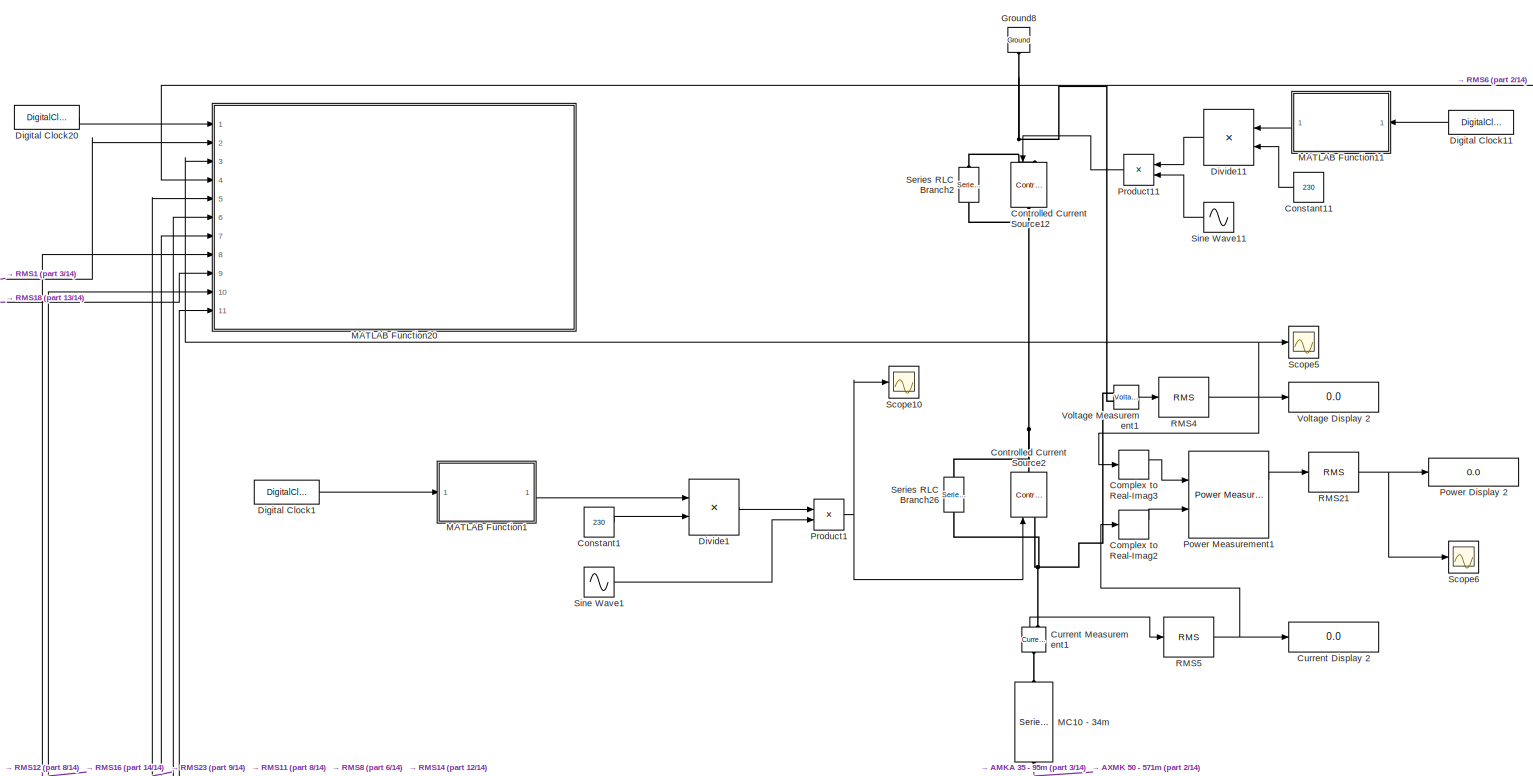
[diagram: root canvas - part 1/14, top center region]
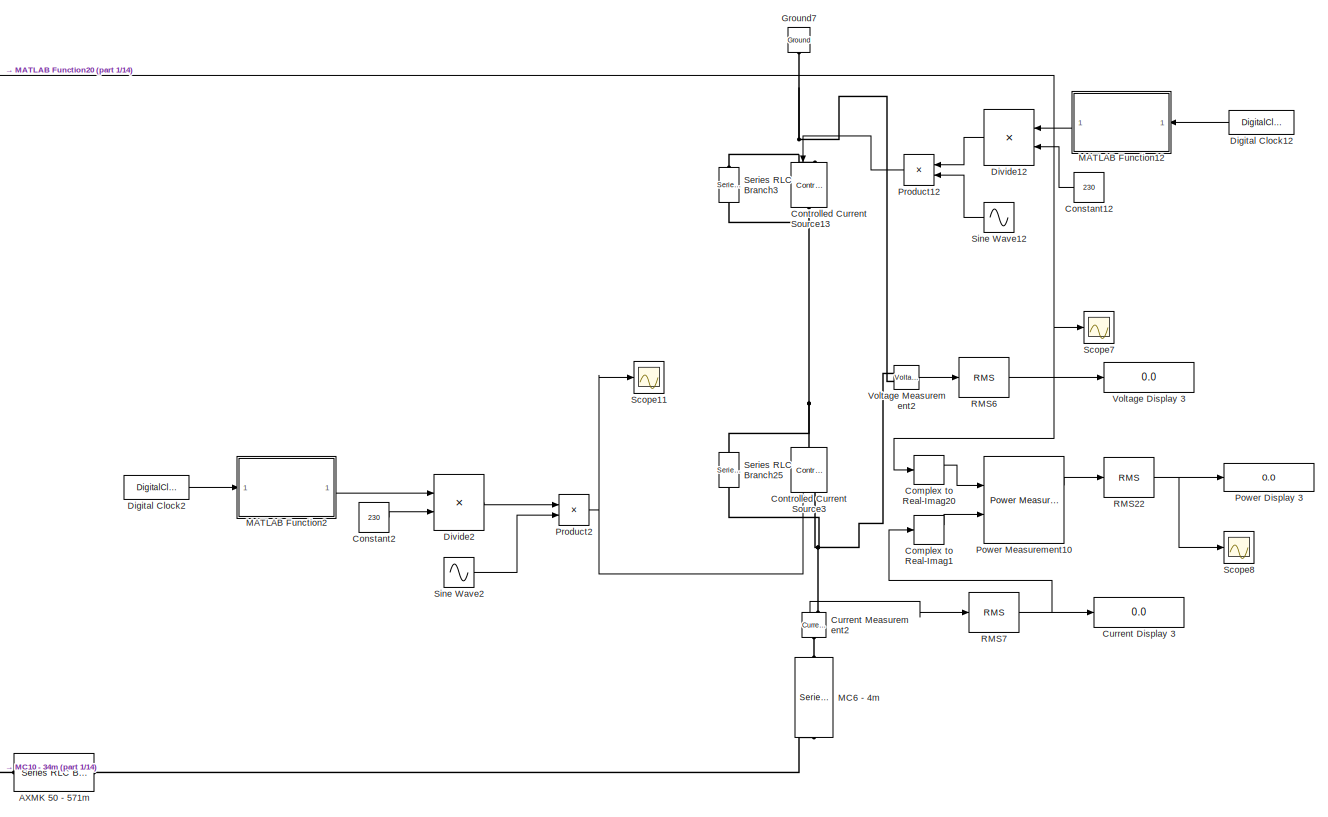
[diagram: root canvas - part 2/14, top right region]
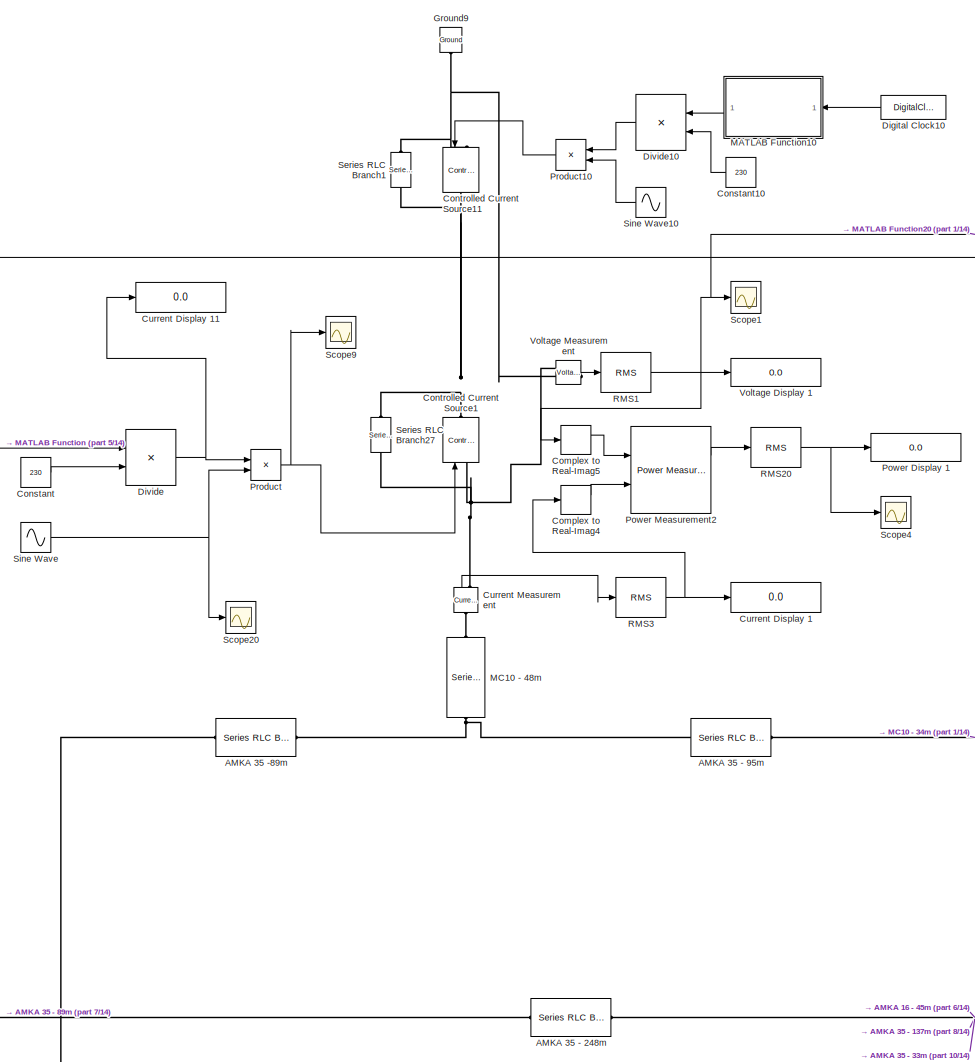
[diagram: root canvas - part 3/14, top center region]
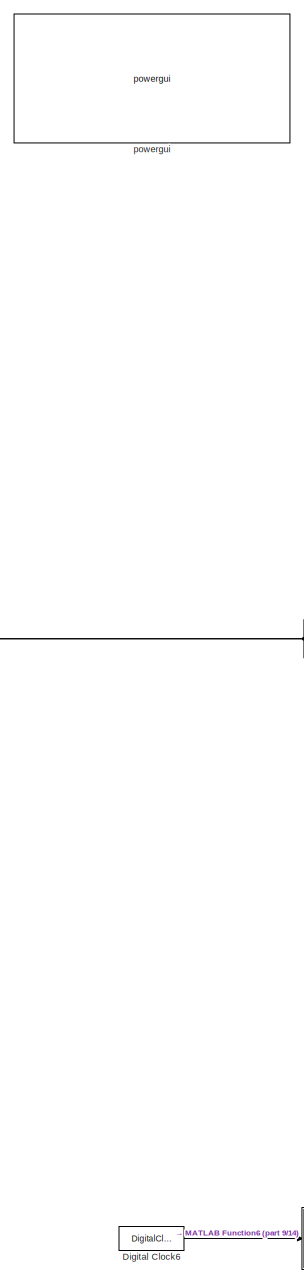
[diagram: root canvas - part 4/14, top left region]
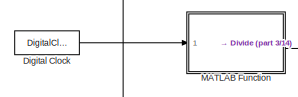
[diagram: root canvas - part 5/14, top left region]
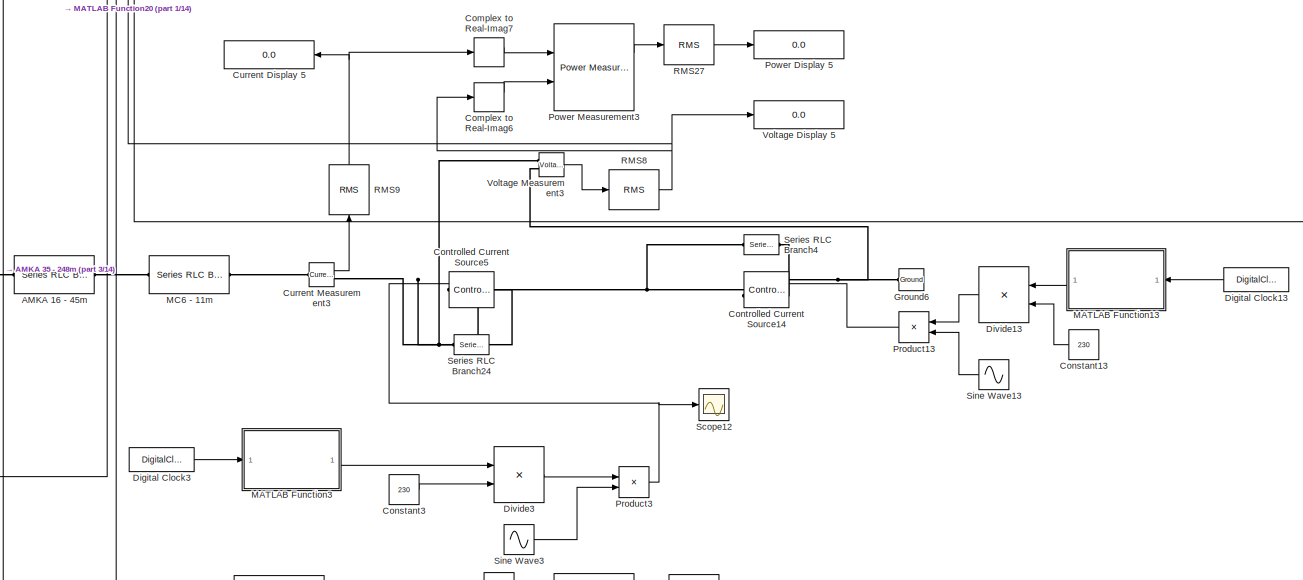
[diagram: root canvas - part 6/14, top center region]
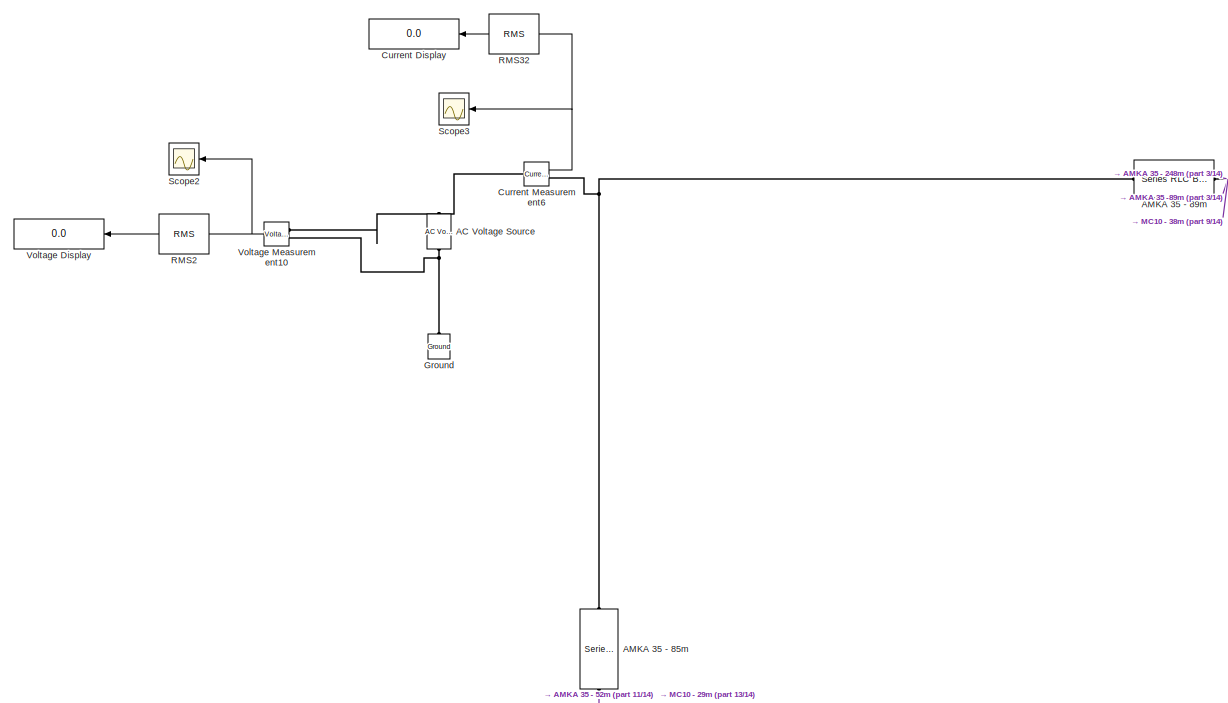
[diagram: root canvas - part 7/14, middle left region]
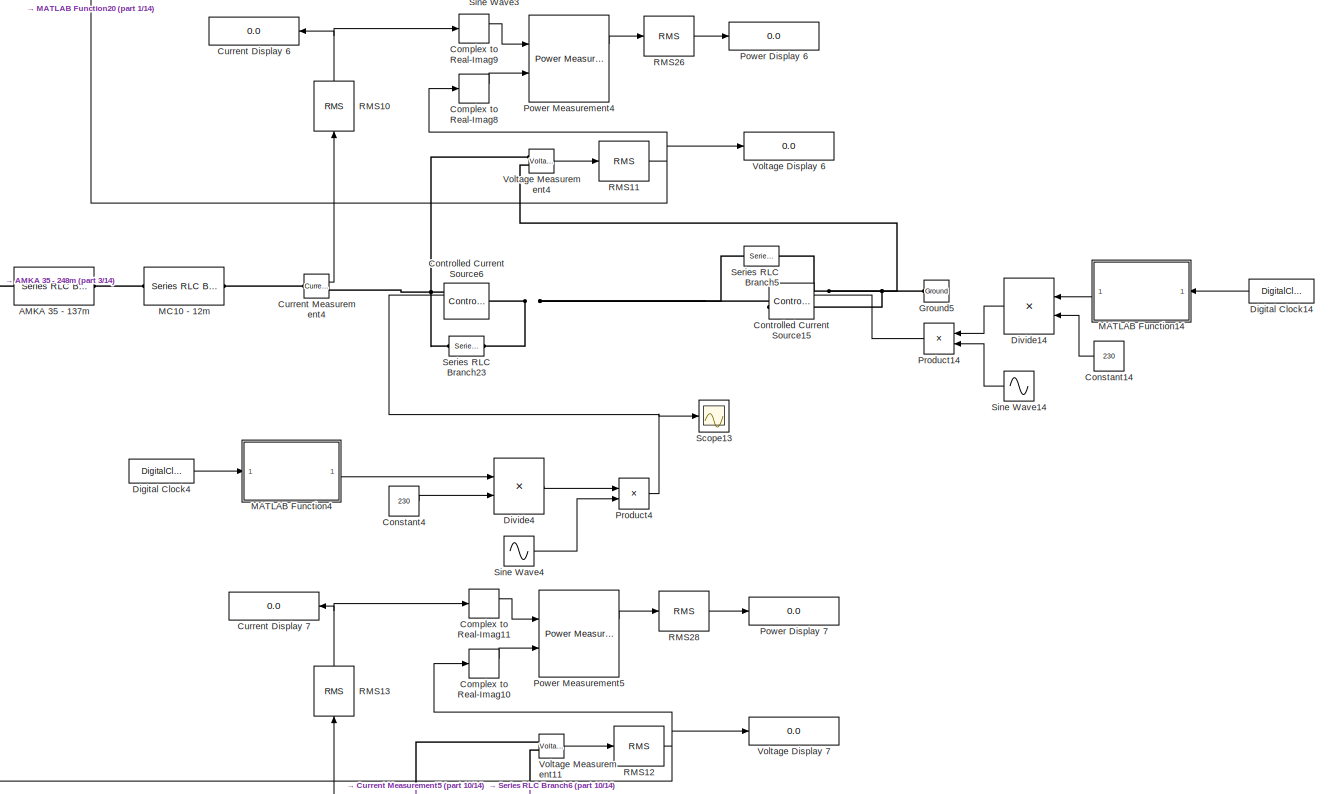
[diagram: root canvas - part 8/14, central region]
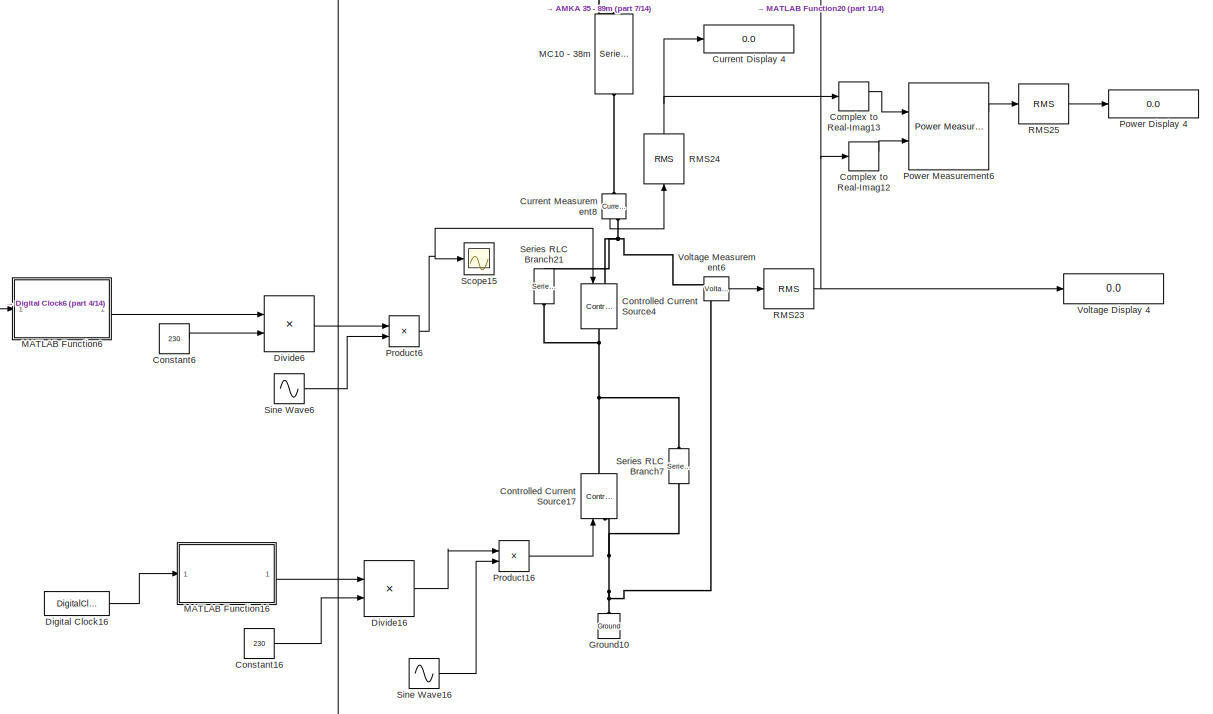
[diagram: root canvas - part 9/14, middle left region]
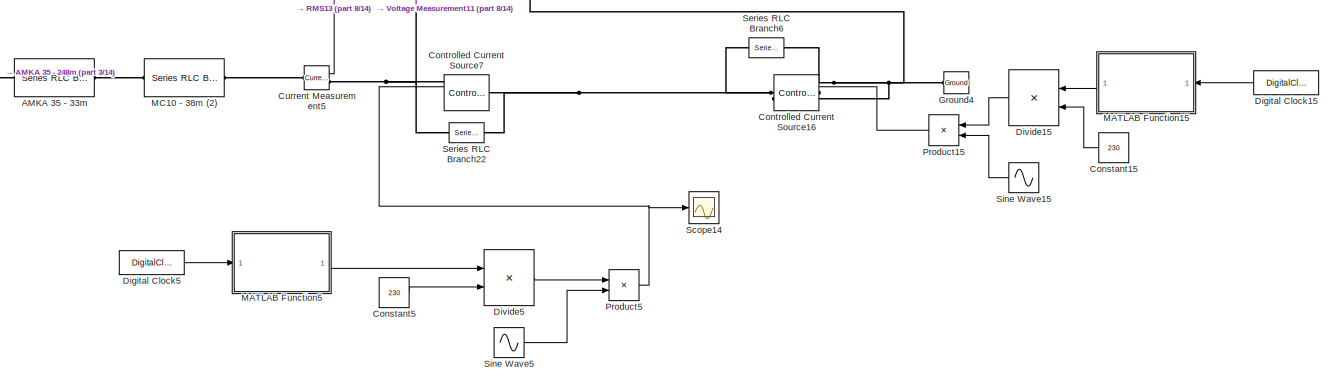
[diagram: root canvas - part 10/14, bottom center region]
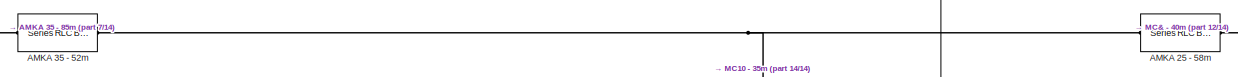
[diagram: root canvas - part 11/14, bottom center region]
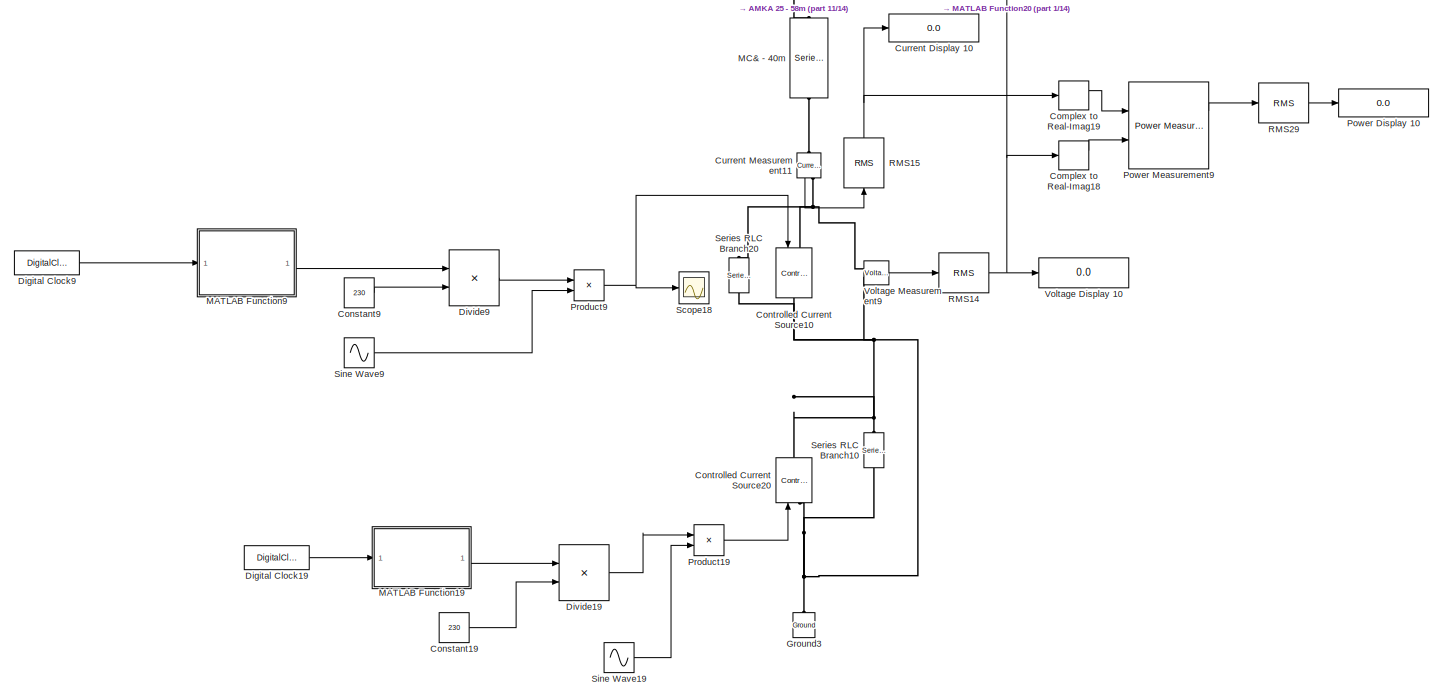
[diagram: root canvas - part 12/14, bottom right region]
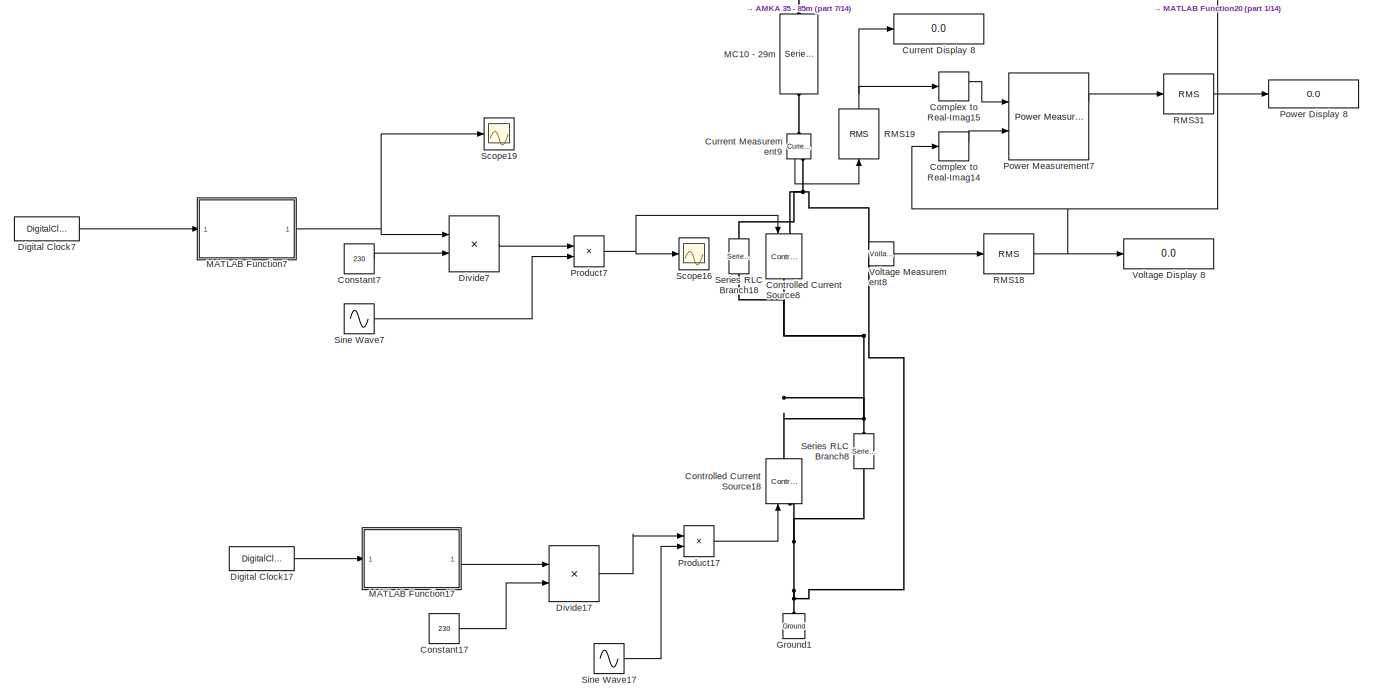
[diagram: root canvas - part 13/14, bottom left region]
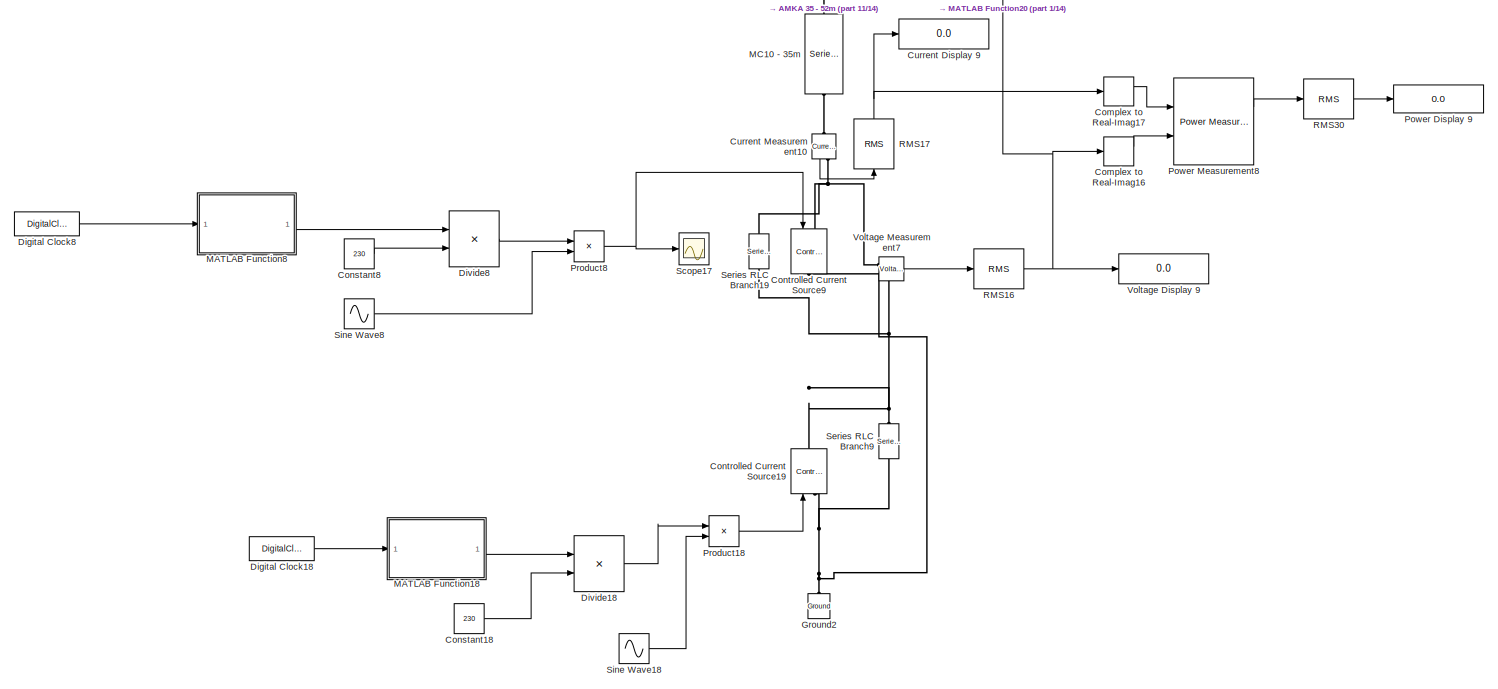
[diagram: root canvas - part 14/14, bottom center region]
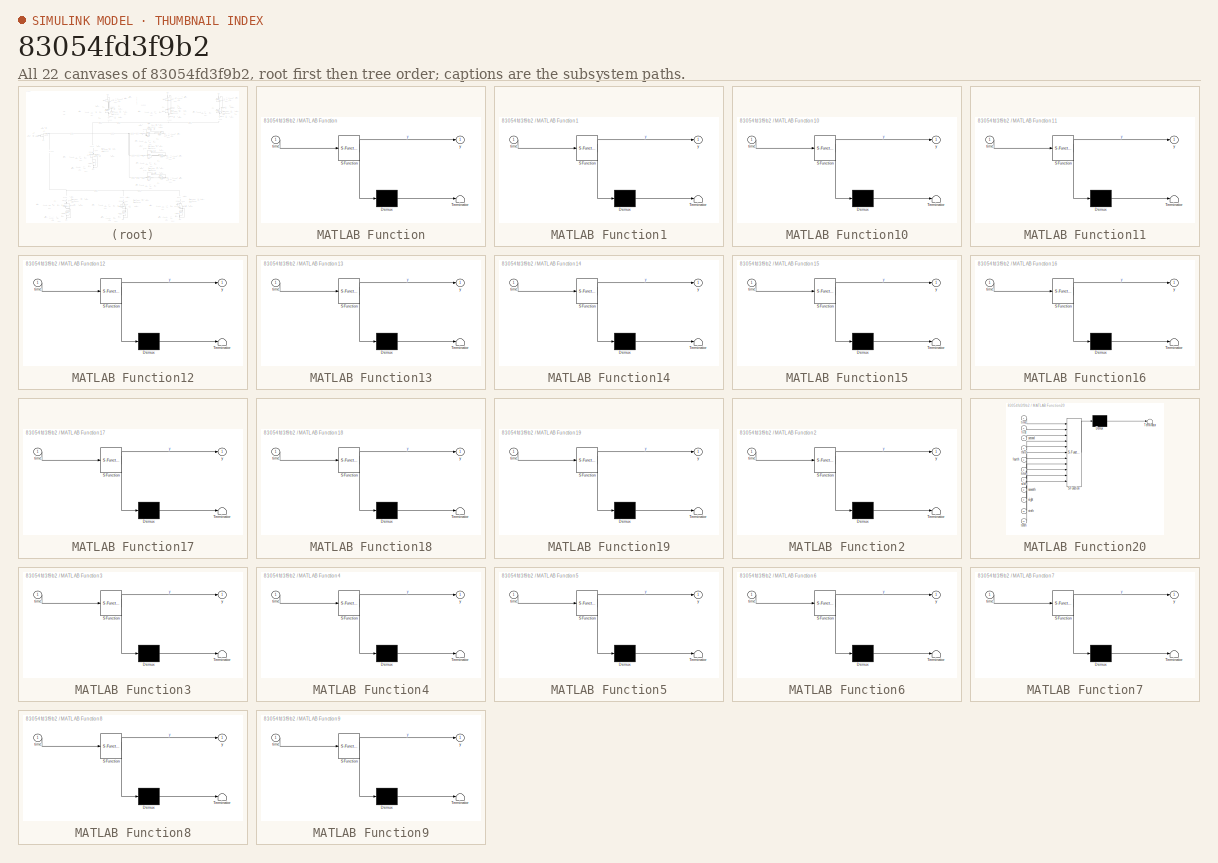
[diagram: thumbnail index - all 22 canvases of the model, root first then tree order]
MODEL slx_83054fd3f9b2
KIND model
CONFIG AbsTol = auto
CONFIG EnableMultiTasking = off
CONFIG FixedStep = auto
CONFIG MaxStep = auto
CONFIG MinStep = auto
CONFIG RelTol = 1e-3
CONFIG SampleTimeConstraint = Unconstrained
CONFIG Solver = VariableStepAuto
CONFIG SolverName = VariableStepAuto
CONFIG StartTime = 0.0
CONFIG StopTime = 1440
WORKSPACE source: mxarray member
WORKSPACE Sig: Simulink.Signal (value not decoded)
BLOCK [Reference] AC Voltage Source  REF=powerlib/Electrical
Sources/AC Voltage Source
  NameLocation = right
  Ports = [0, 0, 0, 0, 0, 1, 1]
  SourceBlock = powerlib/Electrical\nSources/AC Voltage Source
  SourceProductBaseCode = PS
  SourceType = AC Voltage Source
BLOCK [Reference] AMKA 16 - 45m  REF=powerlib/Elements/Series RLC Branch
  Ports = [0, 0, 0, 0, 0, 1, 1]
  SourceBlock = powerlib/Elements/Series RLC Branch
  SourceProductBaseCode = PS
  SourceType = Series RLC Branch
BLOCK [Reference] AMKA 25 - 58m  REF=powerlib/Elements/Series RLC Branch
  Ports = [0, 0, 0, 0, 0, 1, 1]
  SourceBlock = powerlib/Elements/Series RLC Branch
  SourceProductBaseCode = PS
  SourceType = Series RLC Branch
BLOCK [Reference] AMKA 35 - 137m  REF=powerlib/Elements/Series RLC Branch
  Ports = [0, 0, 0, 0, 0, 1, 1]
  SourceBlock = powerlib/Elements/Series RLC Branch
  SourceProductBaseCode = PS
  SourceType = Series RLC Branch
BLOCK [Reference] AMKA 35 - 248m  REF=powerlib/Elements/Series RLC Branch
  Ports = [0, 0, 0, 0, 0, 1, 1]
  SourceBlock = powerlib/Elements/Series RLC Branch
  SourceProductBaseCode = PS
  SourceType = Series RLC Branch
BLOCK [Reference] AMKA 35 - 33m  REF=powerlib/Elements/Series RLC Branch
  Ports = [0, 0, 0, 0, 0, 1, 1]
  SourceBlock = powerlib/Elements/Series RLC Branch
  SourceProductBaseCode = PS
  SourceType = Series RLC Branch
BLOCK [Reference] AMKA 35 - 52m  REF=powerlib/Elements/Series RLC Branch
  Ports = [0, 0, 0, 0, 0, 1, 1]
  SourceBlock = powerlib/Elements/Series RLC Branch
  SourceProductBaseCode = PS
  SourceType = Series RLC Branch
BLOCK [Reference] AMKA 35 - 85m  REF=powerlib/Elements/Series RLC Branch
  NameLocation = left
  Ports = [0, 0, 0, 0, 0, 1, 1]
  SourceBlock = powerlib/Elements/Series RLC Branch
  SourceProductBaseCode = PS
  SourceType = Series RLC Branch
BLOCK [Reference] AMKA 35 - 89m  REF=powerlib/Elements/Series RLC Branch
  Ports = [0, 0, 0, 0, 0, 1, 1]
  SourceBlock = powerlib/Elements/Series RLC Branch
  SourceProductBaseCode = PS
  SourceType = Series RLC Branch
BLOCK [Reference] AMKA 35 - 95m  REF=powerlib/Elements/Series RLC Branch
  Ports = [0, 0, 0, 0, 0, 1, 1]
  SourceBlock = powerlib/Elements/Series RLC Branch
  SourceProductBaseCode = PS
  SourceType = Series RLC Branch
BLOCK [Reference] AMKA 35 -89m  REF=powerlib/Elements/Series RLC Branch
  Ports = [0, 0, 0, 0, 0, 1, 1]
  SourceBlock = powerlib/Elements/Series RLC Branch
  SourceProductBaseCode = PS
  SourceType = Series RLC Branch
BLOCK [Reference] AXMK 50 - 571m  REF=powerlib/Elements/Series RLC Branch
  Ports = [0, 0, 0, 0, 0, 1, 1]
  SourceBlock = powerlib/Elements/Series RLC Branch
  SourceProductBaseCode = PS
  SourceType = Series RLC Branch
BLOCK [ComplexToRealImag] Complex to Real-Imag1
  Ports = [1, 2]
BLOCK [ComplexToRealImag] Complex to Real-Imag10
  Ports = [1, 2]
BLOCK [ComplexToRealImag] Complex to Real-Imag11
  Ports = [1, 2]
BLOCK [ComplexToRealImag] Complex to Real-Imag12
  Ports = [1, 2]
BLOCK [ComplexToRealImag] Complex to Real-Imag13
  Ports = [1, 2]
BLOCK [ComplexToRealImag] Complex to Real-Imag14
  Ports = [1, 2]
BLOCK [ComplexToRealImag] Complex to Real-Imag15
  Ports = [1, 2]
BLOCK [ComplexToRealImag] Complex to Real-Imag16
  Ports = [1, 2]
BLOCK [ComplexToRealImag] Complex to Real-Imag17
  Ports = [1, 2]
BLOCK [ComplexToRealImag] Complex to Real-Imag18
  Ports = [1, 2]
BLOCK [ComplexToRealImag] Complex to Real-Imag19
  Ports = [1, 2]
BLOCK [ComplexToRealImag] Complex to Real-Imag2
  Ports = [1, 2]
BLOCK [ComplexToRealImag] Complex to Real-Imag20
  Ports = [1, 2]
BLOCK [ComplexToRealImag] Complex to Real-Imag3
  Ports = [1, 2]
BLOCK [ComplexToRealImag] Complex to Real-Imag4
  Ports = [1, 2]
BLOCK [ComplexToRealImag] Complex to Real-Imag5
  Ports = [1, 2]
BLOCK [ComplexToRealImag] Complex to Real-Imag6
  Ports = [1, 2]
BLOCK [ComplexToRealImag] Complex to Real-Imag7
  Ports = [1, 2]
BLOCK [ComplexToRealImag] Complex to Real-Imag8
  Ports = [1, 2]
BLOCK [ComplexToRealImag] Complex to Real-Imag9
  Ports = [1, 2]
BLOCK [Constant] Constant
  Value = 230
BLOCK [Constant] Constant1
  Value = 230
BLOCK [Constant] Constant10
  NameLocation = top
  Value = 230
BLOCK [Constant] Constant11
  NameLocation = top
  Value = 230
BLOCK [Constant] Constant12
  NameLocation = top
  Value = 230
BLOCK [Constant] Constant13
  NameLocation = top
  Value = 230
BLOCK [Constant] Constant14
  NameLocation = top
  Value = 230
BLOCK [Constant] Constant15
  NameLocation = top
  Value = 230
BLOCK [Constant] Constant16
  Value = 230
BLOCK [Constant] Constant17
  Value = 230
BLOCK [Constant] Constant18
  Value = 230
BLOCK [Constant] Constant19
  Value = 230
BLOCK [Constant] Constant2
  Value = 230
BLOCK [Constant] Constant3
  Value = 230
BLOCK [Constant] Constant4
  Value = 230
BLOCK [Constant] Constant5
  Value = 230
BLOCK [Constant] Constant6
  Value = 230
BLOCK [Constant] Constant7
  Value = 230
BLOCK [Constant] Constant8
  Value = 230
BLOCK [Constant] Constant9
  Value = 230
BLOCK [Reference] Controlled Current Source1  REF=powerlib/Electrical
Sources/Controlled Current Source
  NameLocation = right
  Ports = [1, 0, 0, 0, 0, 1, 1]
  SourceBlock = powerlib/Electrical\nSources/Controlled Current Source
  SourceProductBaseCode = PS
  SourceType = Controlled Current Source
BLOCK [Reference] Controlled Current Source10  REF=powerlib/Electrical
Sources/Controlled Current Source
  NameLocation = left
  Ports = [1, 0, 0, 0, 0, 1, 1]
  SourceBlock = powerlib/Electrical\nSources/Controlled Current Source
  SourceProductBaseCode = PS
  SourceType = Controlled Current Source
BLOCK [Reference] Controlled Current Source11  REF=powerlib/Electrical
Sources/Controlled Current Source
  NameLocation = left
  Ports = [1, 0, 0, 0, 0, 1, 1]
  SourceBlock = powerlib/Electrical\nSources/Controlled Current Source
  SourceProductBaseCode = PS
  SourceType = Controlled Current Source
BLOCK [Reference] Controlled Current Source12  REF=powerlib/Electrical
Sources/Controlled Current Source
  NameLocation = left
  Ports = [1, 0, 0, 0, 0, 1, 1]
  SourceBlock = powerlib/Electrical\nSources/Controlled Current Source
  SourceProductBaseCode = PS
  SourceType = Controlled Current Source
BLOCK [Reference] Controlled Current Source13  REF=powerlib/Electrical
Sources/Controlled Current Source
  NameLocation = left
  Ports = [1, 0, 0, 0, 0, 1, 1]
  SourceBlock = powerlib/Electrical\nSources/Controlled Current Source
  SourceProductBaseCode = PS
  SourceType = Controlled Current Source
BLOCK [Reference] Controlled Current Source14  REF=powerlib/Electrical
Sources/Controlled Current Source
  NameLocation = top
  Ports = [1, 0, 0, 0, 0, 1, 1]
  SourceBlock = powerlib/Electrical\nSources/Controlled Current Source
  SourceProductBaseCode = PS
  SourceType = Controlled Current Source
BLOCK [Reference] Controlled Current Source15  REF=powerlib/Electrical
Sources/Controlled Current Source
  NameLocation = top
  Ports = [1, 0, 0, 0, 0, 1, 1]
  SourceBlock = powerlib/Electrical\nSources/Controlled Current Source
  SourceProductBaseCode = PS
  SourceType = Controlled Current Source
BLOCK [Reference] Controlled Current Source16  REF=powerlib/Electrical
Sources/Controlled Current Source
  NameLocation = top
  Ports = [1, 0, 0, 0, 0, 1, 1]
  SourceBlock = powerlib/Electrical\nSources/Controlled Current Source
  SourceProductBaseCode = PS
  SourceType = Controlled Current Source
BLOCK [Reference] Controlled Current Source17  REF=powerlib/Electrical
Sources/Controlled Current Source
  NameLocation = right
  Ports = [1, 0, 0, 0, 0, 1, 1]
  SourceBlock = powerlib/Electrical\nSources/Controlled Current Source
  SourceProductBaseCode = PS
  SourceType = Controlled Current Source
BLOCK [Reference] Controlled Current Source18  REF=powerlib/Electrical
Sources/Controlled Current Source
  NameLocation = right
  Ports = [1, 0, 0, 0, 0, 1, 1]
  SourceBlock = powerlib/Electrical\nSources/Controlled Current Source
  SourceProductBaseCode = PS
  SourceType = Controlled Current Source
BLOCK [Reference] Controlled Current Source19  REF=powerlib/Electrical
Sources/Controlled Current Source
  NameLocation = right
  Ports = [1, 0, 0, 0, 0, 1, 1]
  SourceBlock = powerlib/Electrical\nSources/Controlled Current Source
  SourceProductBaseCode = PS
  SourceType = Controlled Current Source
BLOCK [Reference] Controlled Current Source2  REF=powerlib/Electrical
Sources/Controlled Current Source
  NameLocation = right
  Ports = [1, 0, 0, 0, 0, 1, 1]
  SourceBlock = powerlib/Electrical\nSources/Controlled Current Source
  SourceProductBaseCode = PS
  SourceType = Controlled Current Source
BLOCK [Reference] Controlled Current Source20  REF=powerlib/Electrical
Sources/Controlled Current Source
  NameLocation = right
  Ports = [1, 0, 0, 0, 0, 1, 1]
  SourceBlock = powerlib/Electrical\nSources/Controlled Current Source
  SourceProductBaseCode = PS
  SourceType = Controlled Current Source
BLOCK [Reference] Controlled Current Source3  REF=powerlib/Electrical
Sources/Controlled Current Source
  NameLocation = right
  Ports = [1, 0, 0, 0, 0, 1, 1]
  SourceBlock = powerlib/Electrical\nSources/Controlled Current Source
  SourceProductBaseCode = PS
  SourceType = Controlled Current Source
BLOCK [Reference] Controlled Current Source4  REF=powerlib/Electrical
Sources/Controlled Current Source
  NameLocation = left
  Ports = [1, 0, 0, 0, 0, 1, 1]
  SourceBlock = powerlib/Electrical\nSources/Controlled Current Source
  SourceProductBaseCode = PS
  SourceType = Controlled Current Source
BLOCK [Reference] Controlled Current Source5  REF=powerlib/Electrical
Sources/Controlled Current Source
  Ports = [1, 0, 0, 0, 0, 1, 1]
  SourceBlock = powerlib/Electrical\nSources/Controlled Current Source
  SourceProductBaseCode = PS
  SourceType = Controlled Current Source
BLOCK [Reference] Controlled Current Source6  REF=powerlib/Electrical
Sources/Controlled Current Source
  Ports = [1, 0, 0, 0, 0, 1, 1]
  SourceBlock = powerlib/Electrical\nSources/Controlled Current Source
  SourceProductBaseCode = PS
  SourceType = Controlled Current Source
BLOCK [Reference] Controlled Current Source7  REF=powerlib/Electrical
Sources/Controlled Current Source
  Ports = [1, 0, 0, 0, 0, 1, 1]
  SourceBlock = powerlib/Electrical\nSources/Controlled Current Source
  SourceProductBaseCode = PS
  SourceType = Controlled Current Source
BLOCK [Reference] Controlled Current Source8  REF=powerlib/Electrical
Sources/Controlled Current Source
  NameLocation = left
  Ports = [1, 0, 0, 0, 0, 1, 1]
  SourceBlock = powerlib/Electrical\nSources/Controlled Current Source
  SourceProductBaseCode = PS
  SourceType = Controlled Current Source
BLOCK [Reference] Controlled Current Source9  REF=powerlib/Electrical
Sources/Controlled Current Source
  NameLocation = left
  Ports = [1, 0, 0, 0, 0, 1, 1]
  SourceBlock = powerlib/Electrical\nSources/Controlled Current Source
  SourceProductBaseCode = PS
  SourceType = Controlled Current Source
BLOCK [Display] Current Display
  Decimation = 1
  NameLocation = top
  Ports = [1]
BLOCK [Display] Current Display 1
  Decimation = 1
  Ports = [1]
BLOCK [Display] Current Display 10
  Decimation = 1
  Ports = [1]
BLOCK [Display] Current Display 11
  Decimation = 1
  Ports = [1]
BLOCK [Display] Current Display 2
  Decimation = 1
  Ports = [1]
BLOCK [Display] Current Display 3
  Decimation = 1
  Ports = [1]
BLOCK [Display] Current Display 4
  Decimation = 1
  Ports = [1]
BLOCK [Display] Current Display 5
  Decimation = 1
  NameLocation = top
  Ports = [1]
BLOCK [Display] Current Display 6
  Decimation = 1
  NameLocation = top
  Ports = [1]
BLOCK [Display] Current Display 7
  Decimation = 1
  NameLocation = top
  Ports = [1]
BLOCK [Display] Current Display 8
  Decimation = 1
  Ports = [1]
BLOCK [Display] Current Display 9
  Decimation = 1
  Ports = [1]
BLOCK [Reference] Current Measurement  REF=powerlib/Measurements/Current Measurement
  NameLocation = right
  Ports = [0, 1, 0, 0, 0, 1, 1]
  SourceBlock = powerlib/Measurements/Current Measurement
  SourceProductBaseCode = PS
  SourceType = Current Measurement
  UserDataPersistent = on
BLOCK [Reference] Current Measurement1  REF=powerlib/Measurements/Current Measurement
  NameLocation = right
  Ports = [0, 1, 0, 0, 0, 1, 1]
  SourceBlock = powerlib/Measurements/Current Measurement
  SourceProductBaseCode = PS
  SourceType = Current Measurement
  UserDataPersistent = on
BLOCK [Reference] Current Measurement10  REF=powerlib/Measurements/Current Measurement
  NameLocation = left
  Ports = [0, 1, 0, 0, 0, 1, 1]
  SourceBlock = powerlib/Measurements/Current Measurement
  SourceProductBaseCode = PS
  SourceType = Current Measurement
  UserDataPersistent = on
BLOCK [Reference] Current Measurement11  REF=powerlib/Measurements/Current Measurement
  NameLocation = left
  Ports = [0, 1, 0, 0, 0, 1, 1]
  SourceBlock = powerlib/Measurements/Current Measurement
  SourceProductBaseCode = PS
  SourceType = Current Measurement
  UserDataPersistent = on
BLOCK [Reference] Current Measurement2  REF=powerlib/Measurements/Current Measurement
  NameLocation = right
  Ports = [0, 1, 0, 0, 0, 1, 1]
  SourceBlock = powerlib/Measurements/Current Measurement
  SourceProductBaseCode = PS
  SourceType = Current Measurement
  UserDataPersistent = on
BLOCK [Reference] Current Measurement3  REF=powerlib/Measurements/Current Measurement
  Ports = [0, 1, 0, 0, 0, 1, 1]
  SourceBlock = powerlib/Measurements/Current Measurement
  SourceProductBaseCode = PS
  SourceType = Current Measurement
  UserDataPersistent = on
BLOCK [Reference] Current Measurement4  REF=powerlib/Measurements/Current Measurement
  Ports = [0, 1, 0, 0, 0, 1, 1]
  SourceBlock = powerlib/Measurements/Current Measurement
  SourceProductBaseCode = PS
  SourceType = Current Measurement
  UserDataPersistent = on
BLOCK [Reference] Current Measurement5  REF=powerlib/Measurements/Current Measurement
  Ports = [0, 1, 0, 0, 0, 1, 1]
  SourceBlock = powerlib/Measurements/Current Measurement
  SourceProductBaseCode = PS
  SourceType = Current Measurement
  UserDataPersistent = on
BLOCK [Reference] Current Measurement6  REF=powerlib/Measurements/Current Measurement
  Ports = [0, 1, 0, 0, 0, 1, 1]
  SourceBlock = powerlib/Measurements/Current Measurement
  SourceProductBaseCode = PS
  SourceType = Current Measurement
  UserDataPersistent = on
BLOCK [Reference] Current Measurement8  REF=powerlib/Measurements/Current Measurement
  NameLocation = left
  Ports = [0, 1, 0, 0, 0, 1, 1]
  SourceBlock = powerlib/Measurements/Current Measurement
  SourceProductBaseCode = PS
  SourceType = Current Measurement
  UserDataPersistent = on
BLOCK [Reference] Current Measurement9  REF=powerlib/Measurements/Current Measurement
  NameLocation = left
  Ports = [0, 1, 0, 0, 0, 1, 1]
  SourceBlock = powerlib/Measurements/Current Measurement
  SourceProductBaseCode = PS
  SourceType = Current Measurement
  UserDataPersistent = on
BLOCK [DigitalClock] Digital Clock
BLOCK [DigitalClock] Digital Clock1
BLOCK [DigitalClock] Digital Clock10
  NameLocation = top
BLOCK [DigitalClock] Digital Clock11
  NameLocation = top
BLOCK [DigitalClock] Digital Clock12
  NameLocation = top
BLOCK [DigitalClock] Digital Clock13
  NameLocation = top
BLOCK [DigitalClock] Digital Clock14
  NameLocation = top
BLOCK [DigitalClock] Digital Clock15
  NameLocation = top
BLOCK [DigitalClock] Digital Clock16
BLOCK [DigitalClock] Digital Clock17
BLOCK [DigitalClock] Digital Clock18
BLOCK [DigitalClock] Digital Clock19
BLOCK [DigitalClock] Digital Clock2
BLOCK [DigitalClock] Digital Clock20
BLOCK [DigitalClock] Digital Clock3
BLOCK [DigitalClock] Digital Clock4
BLOCK [DigitalClock] Digital Clock5
BLOCK [DigitalClock] Digital Clock6
BLOCK [DigitalClock] Digital Clock7
BLOCK [DigitalClock] Digital Clock8
BLOCK [DigitalClock] Digital Clock9
BLOCK [Product] Divide
  Inputs = */
  Ports = [2, 1]
BLOCK [Product] Divide1
  Inputs = */
  Ports = [2, 1]
BLOCK [Product] Divide10
  Inputs = */
  NameLocation = top
  Ports = [2, 1]
BLOCK [Product] Divide11
  Inputs = */
  NameLocation = top
  Ports = [2, 1]
BLOCK [Product] Divide12
  Inputs = */
  NameLocation = top
  Ports = [2, 1]
BLOCK [Product] Divide13
  Inputs = */
  NameLocation = top
  Ports = [2, 1]
BLOCK [Product] Divide14
  Inputs = */
  NameLocation = top
  Ports = [2, 1]
BLOCK [Product] Divide15
  Inputs = */
  NameLocation = top
  Ports = [2, 1]
BLOCK [Product] Divide16
  Inputs = */
  Ports = [2, 1]
BLOCK [Product] Divide17
  Inputs = */
  Ports = [2, 1]
BLOCK [Product] Divide18
  Inputs = */
  Ports = [2, 1]
BLOCK [Product] Divide19
  Inputs = */
  Ports = [2, 1]
BLOCK [Product] Divide2
  Inputs = */
  Ports = [2, 1]
BLOCK [Product] Divide3
  Inputs = */
  Ports = [2, 1]
BLOCK [Product] Divide4
  Inputs = */
  Ports = [2, 1]
BLOCK [Product] Divide5
  Inputs = */
  Ports = [2, 1]
BLOCK [Product] Divide6
  Inputs = */
  Ports = [2, 1]
BLOCK [Product] Divide7
  Inputs = */
  Ports = [2, 1]
BLOCK [Product] Divide8
  Inputs = */
  Ports = [2, 1]
BLOCK [Product] Divide9
  Inputs = */
  Ports = [2, 1]
BLOCK [Reference] Ground  REF=powerlib/Elements/Ground
  NameLocation = right
  Ports = [0, 0, 0, 0, 0, 1]
  SourceBlock = powerlib/Elements/Ground
  SourceProductBaseCode = PS
  SourceType = Ground
BLOCK [Reference] Ground1  REF=powerlib/Elements/Ground
  NameLocation = right
  Ports = [0, 0, 0, 0, 0, 1]
  SourceBlock = powerlib/Elements/Ground
  SourceProductBaseCode = PS
  SourceType = Ground
BLOCK [Reference] Ground10  REF=powerlib/Elements/Ground
  NameLocation = right
  Ports = [0, 0, 0, 0, 0, 1]
  SourceBlock = powerlib/Elements/Ground
  SourceProductBaseCode = PS
  SourceType = Ground
BLOCK [Reference] Ground2  REF=powerlib/Elements/Ground
  NameLocation = right
  Ports = [0, 0, 0, 0, 0, 1]
  SourceBlock = powerlib/Elements/Ground
  SourceProductBaseCode = PS
  SourceType = Ground
BLOCK [Reference] Ground3  REF=powerlib/Elements/Ground
  NameLocation = right
  Ports = [0, 0, 0, 0, 0, 1]
  SourceBlock = powerlib/Elements/Ground
  SourceProductBaseCode = PS
  SourceType = Ground
BLOCK [Reference] Ground4  REF=powerlib/Elements/Ground
  NameLocation = top
  Ports = [0, 0, 0, 0, 0, 1]
  SourceBlock = powerlib/Elements/Ground
  SourceProductBaseCode = PS
  SourceType = Ground
BLOCK [Reference] Ground5  REF=powerlib/Elements/Ground
  NameLocation = top
  Ports = [0, 0, 0, 0, 0, 1]
  SourceBlock = powerlib/Elements/Ground
  SourceProductBaseCode = PS
  SourceType = Ground
BLOCK [Reference] Ground6  REF=powerlib/Elements/Ground
  NameLocation = top
  Ports = [0, 0, 0, 0, 0, 1]
  SourceBlock = powerlib/Elements/Ground
  SourceProductBaseCode = PS
  SourceType = Ground
BLOCK [Reference] Ground7  REF=powerlib/Elements/Ground
  NameLocation = left
  Ports = [0, 0, 0, 0, 0, 1]
  SourceBlock = powerlib/Elements/Ground
  SourceProductBaseCode = PS
  SourceType = Ground
BLOCK [Reference] Ground8  REF=powerlib/Elements/Ground
  NameLocation = left
  Ports = [0, 0, 0, 0, 0, 1]
  SourceBlock = powerlib/Elements/Ground
  SourceProductBaseCode = PS
  SourceType = Ground
BLOCK [Reference] Ground9  REF=powerlib/Elements/Ground
  NameLocation = left
  Ports = [0, 0, 0, 0, 0, 1]
  SourceBlock = powerlib/Elements/Ground
  SourceProductBaseCode = PS
  SourceType = Ground
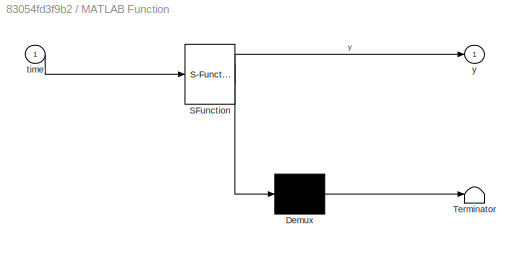
BLOCK [SubSystem] MATLAB Function
  ErrorFcn = Stateflow.Translate.translate
  PermitHierarchicalResolution = ExplicitOnly
  Ports = [1, 1]
  RequestExecContextInheritance = off
  SFBlockType = MATLAB Function
  TreatAsAtomicUnit = on
BLOCK [Demux] MATLAB Function/ Demux 
  Outputs = 1
  Ports = [1, 1]
BLOCK [S-Function] MATLAB Function/ SFunction 
  EnableBusSupport = on
  FunctionName = sf_sfun
  PortCounts = [1 2]
  Ports = [1, 2]
  SFcnIsStateOwnerBlock = off
  SFunctionDeploymentMode = off
  Tag = Stateflow S-Function 2
BLOCK [Terminator] MATLAB Function/ Terminator 
BLOCK [Inport] MATLAB Function/time
BLOCK [Outport] MATLAB Function/y
BLOCK [SubSystem] MATLAB Function1
  ErrorFcn = Stateflow.Translate.translate
  PermitHierarchicalResolution = ExplicitOnly
  Ports = [1, 1]
  RequestExecContextInheritance = off
  SFBlockType = MATLAB Function
  TreatAsAtomicUnit = on
BLOCK [Demux] MATLAB Function1/ Demux 
  Outputs = 1
  Ports = [1, 1]
BLOCK [S-Function] MATLAB Function1/ SFunction 
  EnableBusSupport = on
  FunctionName = sf_sfun
  PortCounts = [1 2]
  Ports = [1, 2]
  SFcnIsStateOwnerBlock = off
  SFunctionDeploymentMode = off
  Tag = Stateflow S-Function 1
BLOCK [Terminator] MATLAB Function1/ Terminator 
BLOCK [Inport] MATLAB Function1/time
BLOCK [Outport] MATLAB Function1/y
BLOCK [SubSystem] MATLAB Function10
  ErrorFcn = Stateflow.Translate.translate
  NameLocation = top
  PermitHierarchicalResolution = ExplicitOnly
  Ports = [1, 1]
  RequestExecContextInheritance = off
  SFBlockType = MATLAB Function
  TreatAsAtomicUnit = on
BLOCK [Demux] MATLAB Function10/ Demux 
  Outputs = 1
  Ports = [1, 1]
BLOCK [S-Function] MATLAB Function10/ SFunction 
  EnableBusSupport = on
  FunctionName = sf_sfun
  PortCounts = [1 2]
  Ports = [1, 2]
  SFcnIsStateOwnerBlock = off
  SFunctionDeploymentMode = off
  Tag = Stateflow S-Function 11
BLOCK [Terminator] MATLAB Function10/ Terminator 
BLOCK [Inport] MATLAB Function10/time
BLOCK [Outport] MATLAB Function10/y
BLOCK [SubSystem] MATLAB Function11
  ErrorFcn = Stateflow.Translate.translate
  NameLocation = top
  PermitHierarchicalResolution = ExplicitOnly
  Ports = [1, 1]
  RequestExecContextInheritance = off
  SFBlockType = MATLAB Function
  TreatAsAtomicUnit = on
BLOCK [Demux] MATLAB Function11/ Demux 
  Outputs = 1
  Ports = [1, 1]
BLOCK [S-Function] MATLAB Function11/ SFunction 
  EnableBusSupport = on
  FunctionName = sf_sfun
  PortCounts = [1 2]
  Ports = [1, 2]
  SFcnIsStateOwnerBlock = off
  SFunctionDeploymentMode = off
  Tag = Stateflow S-Function 12
BLOCK [Terminator] MATLAB Function11/ Terminator 
BLOCK [Inport] MATLAB Function11/time
BLOCK [Outport] MATLAB Function11/y
BLOCK [SubSystem] MATLAB Function12
  ErrorFcn = Stateflow.Translate.translate
  NameLocation = top
  PermitHierarchicalResolution = ExplicitOnly
  Ports = [1, 1]
  RequestExecContextInheritance = off
  SFBlockType = MATLAB Function
  TreatAsAtomicUnit = on
BLOCK [Demux] MATLAB Function12/ Demux 
  Outputs = 1
  Ports = [1, 1]
BLOCK [S-Function] MATLAB Function12/ SFunction 
  EnableBusSupport = on
  FunctionName = sf_sfun
  PortCounts = [1 2]
  Ports = [1, 2]
  SFcnIsStateOwnerBlock = off
  SFunctionDeploymentMode = off
  Tag = Stateflow S-Function 13
BLOCK [Terminator] MATLAB Function12/ Terminator 
BLOCK [Inport] MATLAB Function12/time
BLOCK [Outport] MATLAB Function12/y
BLOCK [SubSystem] MATLAB Function13
  ErrorFcn = Stateflow.Translate.translate
  NameLocation = top
  PermitHierarchicalResolution = ExplicitOnly
  Ports = [1, 1]
  RequestExecContextInheritance = off
  SFBlockType = MATLAB Function
  TreatAsAtomicUnit = on
BLOCK [Demux] MATLAB Function13/ Demux 
  Outputs = 1
  Ports = [1, 1]
BLOCK [S-Function] MATLAB Function13/ SFunction 
  EnableBusSupport = on
  FunctionName = sf_sfun
  PortCounts = [1 2]
  Ports = [1, 2]
  SFcnIsStateOwnerBlock = off
  SFunctionDeploymentMode = off
  Tag = Stateflow S-Function 14
BLOCK [Terminator] MATLAB Function13/ Terminator 
BLOCK [Inport] MATLAB Function13/time
BLOCK [Outport] MATLAB Function13/y
BLOCK [SubSystem] MATLAB Function14
  ErrorFcn = Stateflow.Translate.translate
  NameLocation = top
  PermitHierarchicalResolution = ExplicitOnly
  Ports = [1, 1]
  RequestExecContextInheritance = off
  SFBlockType = MATLAB Function
  TreatAsAtomicUnit = on
BLOCK [Demux] MATLAB Function14/ Demux 
  Outputs = 1
  Ports = [1, 1]
BLOCK [S-Function] MATLAB Function14/ SFunction 
  EnableBusSupport = on
  FunctionName = sf_sfun
  PortCounts = [1 2]
  Ports = [1, 2]
  SFcnIsStateOwnerBlock = off
  SFunctionDeploymentMode = off
  Tag = Stateflow S-Function 15
BLOCK [Terminator] MATLAB Function14/ Terminator 
BLOCK [Inport] MATLAB Function14/time
BLOCK [Outport] MATLAB Function14/y
BLOCK [SubSystem] MATLAB Function15
  ErrorFcn = Stateflow.Translate.translate
  NameLocation = top
  PermitHierarchicalResolution = ExplicitOnly
  Ports = [1, 1]
  RequestExecContextInheritance = off
  SFBlockType = MATLAB Function
  TreatAsAtomicUnit = on
BLOCK [Demux] MATLAB Function15/ Demux 
  Outputs = 1
  Ports = [1, 1]
BLOCK [S-Function] MATLAB Function15/ SFunction 
  EnableBusSupport = on
  FunctionName = sf_sfun
  PortCounts = [1 2]
  Ports = [1, 2]
  SFcnIsStateOwnerBlock = off
  SFunctionDeploymentMode = off
  Tag = Stateflow S-Function 16
BLOCK [Terminator] MATLAB Function15/ Terminator 
BLOCK [Inport] MATLAB Function15/time
BLOCK [Outport] MATLAB Function15/y
BLOCK [SubSystem] MATLAB Function16
  ErrorFcn = Stateflow.Translate.translate
  PermitHierarchicalResolution = ExplicitOnly
  Ports = [1, 1]
  RequestExecContextInheritance = off
  SFBlockType = MATLAB Function
  TreatAsAtomicUnit = on
BLOCK [Demux] MATLAB Function16/ Demux 
  Outputs = 1
  Ports = [1, 1]
BLOCK [S-Function] MATLAB Function16/ SFunction 
  EnableBusSupport = on
  FunctionName = sf_sfun
  PortCounts = [1 2]
  Ports = [1, 2]
  SFcnIsStateOwnerBlock = off
  SFunctionDeploymentMode = off
  Tag = Stateflow S-Function 17
BLOCK [Terminator] MATLAB Function16/ Terminator 
BLOCK [Inport] MATLAB Function16/time
BLOCK [Outport] MATLAB Function16/y
BLOCK [SubSystem] MATLAB Function17
  ErrorFcn = Stateflow.Translate.translate
  PermitHierarchicalResolution = ExplicitOnly
  Ports = [1, 1]
  RequestExecContextInheritance = off
  SFBlockType = MATLAB Function
  TreatAsAtomicUnit = on
BLOCK [Demux] MATLAB Function17/ Demux 
  Outputs = 1
  Ports = [1, 1]
BLOCK [S-Function] MATLAB Function17/ SFunction 
  EnableBusSupport = on
  FunctionName = sf_sfun
  PortCounts = [1 2]
  Ports = [1, 2]
  SFcnIsStateOwnerBlock = off
  SFunctionDeploymentMode = off
  Tag = Stateflow S-Function 18
BLOCK [Terminator] MATLAB Function17/ Terminator 
BLOCK [Inport] MATLAB Function17/time
BLOCK [Outport] MATLAB Function17/y
BLOCK [SubSystem] MATLAB Function18
  ErrorFcn = Stateflow.Translate.translate
  PermitHierarchicalResolution = ExplicitOnly
  Ports = [1, 1]
  RequestExecContextInheritance = off
  SFBlockType = MATLAB Function
  TreatAsAtomicUnit = on
BLOCK [Demux] MATLAB Function18/ Demux 
  Outputs = 1
  Ports = [1, 1]
BLOCK [S-Function] MATLAB Function18/ SFunction 
  EnableBusSupport = on
  FunctionName = sf_sfun
  PortCounts = [1 2]
  Ports = [1, 2]
  SFcnIsStateOwnerBlock = off
  SFunctionDeploymentMode = off
  Tag = Stateflow S-Function 19
BLOCK [Terminator] MATLAB Function18/ Terminator 
BLOCK [Inport] MATLAB Function18/time
BLOCK [Outport] MATLAB Function18/y
BLOCK [SubSystem] MATLAB Function19
  ErrorFcn = Stateflow.Translate.translate
  PermitHierarchicalResolution = ExplicitOnly
  Ports = [1, 1]
  RequestExecContextInheritance = off
  SFBlockType = MATLAB Function
  TreatAsAtomicUnit = on
BLOCK [Demux] MATLAB Function19/ Demux 
  Outputs = 1
  Ports = [1, 1]
BLOCK [S-Function] MATLAB Function19/ SFunction 
  EnableBusSupport = on
  FunctionName = sf_sfun
  PortCounts = [1 2]
  Ports = [1, 2]
  SFcnIsStateOwnerBlock = off
  SFunctionDeploymentMode = off
  Tag = Stateflow S-Function 20
BLOCK [Terminator] MATLAB Function19/ Terminator 
BLOCK [Inport] MATLAB Function19/time
BLOCK [Outport] MATLAB Function19/y
BLOCK [SubSystem] MATLAB Function2
  ErrorFcn = Stateflow.Translate.translate
  PermitHierarchicalResolution = ExplicitOnly
  Ports = [1, 1]
  RequestExecContextInheritance = off
  SFBlockType = MATLAB Function
  TreatAsAtomicUnit = on
BLOCK [Demux] MATLAB Function2/ Demux 
  Outputs = 1
  Ports = [1, 1]
BLOCK [S-Function] MATLAB Function2/ SFunction 
  EnableBusSupport = on
  FunctionName = sf_sfun
  PortCounts = [1 2]
  Ports = [1, 2]
  SFcnIsStateOwnerBlock = off
  SFunctionDeploymentMode = off
  Tag = Stateflow S-Function 3
BLOCK [Terminator] MATLAB Function2/ Terminator 
BLOCK [Inport] MATLAB Function2/time
BLOCK [Outport] MATLAB Function2/y
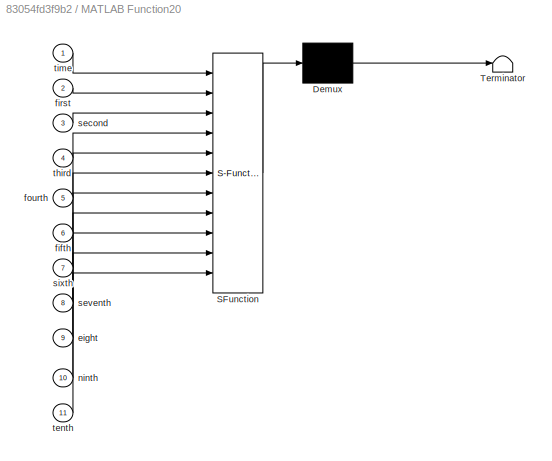
BLOCK [SubSystem] MATLAB Function20
  ErrorFcn = Stateflow.Translate.translate
  PermitHierarchicalResolution = ExplicitOnly
  Ports = [11]
  RequestExecContextInheritance = off
  SFBlockType = MATLAB Function
  TreatAsAtomicUnit = on
BLOCK [Demux] MATLAB Function20/ Demux 
  Outputs = 1
  Ports = [1, 1]
BLOCK [S-Function] MATLAB Function20/ SFunction 
  EnableBusSupport = on
  FunctionName = sf_sfun
  PortCounts = [11 1]
  Ports = [11, 1]
  SFcnIsStateOwnerBlock = off
  SFunctionDeploymentMode = off
  Tag = Stateflow S-Function 21
BLOCK [Terminator] MATLAB Function20/ Terminator 
BLOCK [Inport] MATLAB Function20/eight
  Port = 9
BLOCK [Inport] MATLAB Function20/fifth
  Port = 6
BLOCK [Inport] MATLAB Function20/first
  Port = 2
BLOCK [Inport] MATLAB Function20/fourth
  Port = 5
BLOCK [Inport] MATLAB Function20/ninth
  Port = 10
BLOCK [Inport] MATLAB Function20/second
  Port = 3
BLOCK [Inport] MATLAB Function20/seventh
  Port = 8
BLOCK [Inport] MATLAB Function20/sixth
  Port = 7
BLOCK [Inport] MATLAB Function20/tenth
  Port = 11
BLOCK [Inport] MATLAB Function20/third
  Port = 4
BLOCK [Inport] MATLAB Function20/time
BLOCK [SubSystem] MATLAB Function3
  ErrorFcn = Stateflow.Translate.translate
  PermitHierarchicalResolution = ExplicitOnly
  Ports = [1, 1]
  RequestExecContextInheritance = off
  SFBlockType = MATLAB Function
  TreatAsAtomicUnit = on
BLOCK [Demux] MATLAB Function3/ Demux 
  Outputs = 1
  Ports = [1, 1]
BLOCK [S-Function] MATLAB Function3/ SFunction 
  EnableBusSupport = on
  FunctionName = sf_sfun
  PortCounts = [1 2]
  Ports = [1, 2]
  SFcnIsStateOwnerBlock = off
  SFunctionDeploymentMode = off
  Tag = Stateflow S-Function 4
BLOCK [Terminator] MATLAB Function3/ Terminator 
BLOCK [Inport] MATLAB Function3/time
BLOCK [Outport] MATLAB Function3/y
BLOCK [SubSystem] MATLAB Function4
  ErrorFcn = Stateflow.Translate.translate
  PermitHierarchicalResolution = ExplicitOnly
  Ports = [1, 1]
  RequestExecContextInheritance = off
  SFBlockType = MATLAB Function
  TreatAsAtomicUnit = on
BLOCK [Demux] MATLAB Function4/ Demux 
  Outputs = 1
  Ports = [1, 1]
BLOCK [S-Function] MATLAB Function4/ SFunction 
  EnableBusSupport = on
  FunctionName = sf_sfun
  PortCounts = [1 2]
  Ports = [1, 2]
  SFcnIsStateOwnerBlock = off
  SFunctionDeploymentMode = off
  Tag = Stateflow S-Function 5
BLOCK [Terminator] MATLAB Function4/ Terminator 
BLOCK [Inport] MATLAB Function4/time
BLOCK [Outport] MATLAB Function4/y
BLOCK [SubSystem] MATLAB Function5
  ErrorFcn = Stateflow.Translate.translate
  PermitHierarchicalResolution = ExplicitOnly
  Ports = [1, 1]
  RequestExecContextInheritance = off
  SFBlockType = MATLAB Function
  TreatAsAtomicUnit = on
BLOCK [Demux] MATLAB Function5/ Demux 
  Outputs = 1
  Ports = [1, 1]
BLOCK [S-Function] MATLAB Function5/ SFunction 
  EnableBusSupport = on
  FunctionName = sf_sfun
  PortCounts = [1 2]
  Ports = [1, 2]
  SFcnIsStateOwnerBlock = off
  SFunctionDeploymentMode = off
  Tag = Stateflow S-Function 6
BLOCK [Terminator] MATLAB Function5/ Terminator 
BLOCK [Inport] MATLAB Function5/time
BLOCK [Outport] MATLAB Function5/y
BLOCK [SubSystem] MATLAB Function6
  ErrorFcn = Stateflow.Translate.translate
  PermitHierarchicalResolution = ExplicitOnly
  Ports = [1, 1]
  RequestExecContextInheritance = off
  SFBlockType = MATLAB Function
  TreatAsAtomicUnit = on
BLOCK [Demux] MATLAB Function6/ Demux 
  Outputs = 1
  Ports = [1, 1]
BLOCK [S-Function] MATLAB Function6/ SFunction 
  EnableBusSupport = on
  FunctionName = sf_sfun
  PortCounts = [1 2]
  Ports = [1, 2]
  SFcnIsStateOwnerBlock = off
  SFunctionDeploymentMode = off
  Tag = Stateflow S-Function 7
BLOCK [Terminator] MATLAB Function6/ Terminator 
BLOCK [Inport] MATLAB Function6/time
BLOCK [Outport] MATLAB Function6/y
BLOCK [SubSystem] MATLAB Function7
  ErrorFcn = Stateflow.Translate.translate
  PermitHierarchicalResolution = ExplicitOnly
  Ports = [1, 1]
  RequestExecContextInheritance = off
  SFBlockType = MATLAB Function
  TreatAsAtomicUnit = on
BLOCK [Demux] MATLAB Function7/ Demux 
  Outputs = 1
  Ports = [1, 1]
BLOCK [S-Function] MATLAB Function7/ SFunction 
  EnableBusSupport = on
  FunctionName = sf_sfun
  PortCounts = [1 2]
  Ports = [1, 2]
  SFcnIsStateOwnerBlock = off
  SFunctionDeploymentMode = off
  Tag = Stateflow S-Function 8
BLOCK [Terminator] MATLAB Function7/ Terminator 
BLOCK [Inport] MATLAB Function7/time
BLOCK [Outport] MATLAB Function7/y
BLOCK [SubSystem] MATLAB Function8
  ErrorFcn = Stateflow.Translate.translate
  PermitHierarchicalResolution = ExplicitOnly
  Ports = [1, 1]
  RequestExecContextInheritance = off
  SFBlockType = MATLAB Function
  TreatAsAtomicUnit = on
BLOCK [Demux] MATLAB Function8/ Demux 
  Outputs = 1
  Ports = [1, 1]
BLOCK [S-Function] MATLAB Function8/ SFunction 
  EnableBusSupport = on
  FunctionName = sf_sfun
  PortCounts = [1 2]
  Ports = [1, 2]
  SFcnIsStateOwnerBlock = off
  SFunctionDeploymentMode = off
  Tag = Stateflow S-Function 9
BLOCK [Terminator] MATLAB Function8/ Terminator 
BLOCK [Inport] MATLAB Function8/time
BLOCK [Outport] MATLAB Function8/y
BLOCK [SubSystem] MATLAB Function9
  ErrorFcn = Stateflow.Translate.translate
  PermitHierarchicalResolution = ExplicitOnly
  Ports = [1, 1]
  RequestExecContextInheritance = off
  SFBlockType = MATLAB Function
  TreatAsAtomicUnit = on
BLOCK [Demux] MATLAB Function9/ Demux 
  Outputs = 1
  Ports = [1, 1]
BLOCK [S-Function] MATLAB Function9/ SFunction 
  EnableBusSupport = on
  FunctionName = sf_sfun
  PortCounts = [1 2]
  Ports = [1, 2]
  SFcnIsStateOwnerBlock = off
  SFunctionDeploymentMode = off
  Tag = Stateflow S-Function 10
BLOCK [Terminator] MATLAB Function9/ Terminator 
BLOCK [Inport] MATLAB Function9/time
BLOCK [Outport] MATLAB Function9/y
BLOCK [Reference] MC& - 40m  REF=powerlib/Elements/Series RLC Branch
  NameLocation = left
  Ports = [0, 0, 0, 0, 0, 1, 1]
  SourceBlock = powerlib/Elements/Series RLC Branch
  SourceProductBaseCode = PS
  SourceType = Series RLC Branch
BLOCK [Reference] MC10 - 12m  REF=powerlib/Elements/Series RLC Branch
  Ports = [0, 0, 0, 0, 0, 1, 1]
  SourceBlock = powerlib/Elements/Series RLC Branch
  SourceProductBaseCode = PS
  SourceType = Series RLC Branch
BLOCK [Reference] MC10 - 29m  REF=powerlib/Elements/Series RLC Branch
  NameLocation = left
  Ports = [0, 0, 0, 0, 0, 1, 1]
  SourceBlock = powerlib/Elements/Series RLC Branch
  SourceProductBaseCode = PS
  SourceType = Series RLC Branch
BLOCK [Reference] MC10 - 34m  REF=powerlib/Elements/Series RLC Branch
  NameLocation = right
  Ports = [0, 0, 0, 0, 0, 1, 1]
  SourceBlock = powerlib/Elements/Series RLC Branch
  SourceProductBaseCode = PS
  SourceType = Series RLC Branch
BLOCK [Reference] MC10 - 35m  REF=powerlib/Elements/Series RLC Branch
  NameLocation = left
  Ports = [0, 0, 0, 0, 0, 1, 1]
  SourceBlock = powerlib/Elements/Series RLC Branch
  SourceProductBaseCode = PS
  SourceType = Series RLC Branch
BLOCK [Reference] MC10 - 38m  REF=powerlib/Elements/Series RLC Branch
  NameLocation = left
  Ports = [0, 0, 0, 0, 0, 1, 1]
  SourceBlock = powerlib/Elements/Series RLC Branch
  SourceProductBaseCode = PS
  SourceType = Series RLC Branch
BLOCK [Reference] MC10 - 38m (2)   REF=powerlib/Elements/Series RLC Branch
  Ports = [0, 0, 0, 0, 0, 1, 1]
  SourceBlock = powerlib/Elements/Series RLC Branch
  SourceProductBaseCode = PS
  SourceType = Series RLC Branch
BLOCK [Reference] MC10 - 48m  REF=powerlib/Elements/Series RLC Branch
  NameLocation = right
  Ports = [0, 0, 0, 0, 0, 1, 1]
  SourceBlock = powerlib/Elements/Series RLC Branch
  SourceProductBaseCode = PS
  SourceType = Series RLC Branch
BLOCK [Reference] MC6 - 11m  REF=powerlib/Elements/Series RLC Branch
  Ports = [0, 0, 0, 0, 0, 1, 1]
  SourceBlock = powerlib/Elements/Series RLC Branch
  SourceProductBaseCode = PS
  SourceType = Series RLC Branch
BLOCK [Reference] MC6 - 4m  REF=powerlib/Elements/Series RLC Branch
  NameLocation = right
  Ports = [0, 0, 0, 0, 0, 1, 1]
  SourceBlock = powerlib/Elements/Series RLC Branch
  SourceProductBaseCode = PS
  SourceType = Series RLC Branch
BLOCK [Display] Power Display 1
  Decimation = 1
  Ports = [1]
BLOCK [Display] Power Display 10
  Decimation = 1
  Ports = [1]
BLOCK [Display] Power Display 2
  Decimation = 1
  Ports = [1]
BLOCK [Display] Power Display 3
  Decimation = 1
  Ports = [1]
BLOCK [Display] Power Display 4
  Decimation = 1
  Ports = [1]
BLOCK [Display] Power Display 5
  Decimation = 1
  Ports = [1]
BLOCK [Display] Power Display 6
  Decimation = 1
  Ports = [1]
BLOCK [Display] Power Display 7
  Decimation = 1
  Ports = [1]
BLOCK [Display] Power Display 8
  Decimation = 1
  Ports = [1]
BLOCK [Display] Power Display 9
  Decimation = 1
  Ports = [1]
BLOCK [Reference] Power Measurement1  REF=eePowerMeasurement/Power
Measurement
  Ports = [2, 2]
  SourceBlock = eePowerMeasurement/Power\nMeasurement
  SourceProductBaseCode = PS
  SourceType = Power Measurement
BLOCK [Reference] Power Measurement10  REF=eePowerMeasurement/Power
Measurement
  Ports = [2, 2]
  SourceBlock = eePowerMeasurement/Power\nMeasurement
  SourceProductBaseCode = PS
  SourceType = Power Measurement
BLOCK [Reference] Power Measurement2  REF=eePowerMeasurement/Power
Measurement
  Ports = [2, 2]
  SourceBlock = eePowerMeasurement/Power\nMeasurement
  SourceProductBaseCode = PS
  SourceType = Power Measurement
BLOCK [Reference] Power Measurement3  REF=eePowerMeasurement/Power
Measurement
  Ports = [2, 2]
  SourceBlock = eePowerMeasurement/Power\nMeasurement
  SourceProductBaseCode = PS
  SourceType = Power Measurement
BLOCK [Reference] Power Measurement4  REF=eePowerMeasurement/Power
Measurement
  Ports = [2, 2]
  SourceBlock = eePowerMeasurement/Power\nMeasurement
  SourceProductBaseCode = PS
  SourceType = Power Measurement
BLOCK [Reference] Power Measurement5  REF=eePowerMeasurement/Power
Measurement
  Ports = [2, 2]
  SourceBlock = eePowerMeasurement/Power\nMeasurement
  SourceProductBaseCode = PS
  SourceType = Power Measurement
BLOCK [Reference] Power Measurement6  REF=eePowerMeasurement/Power
Measurement
  Ports = [2, 2]
  SourceBlock = eePowerMeasurement/Power\nMeasurement
  SourceProductBaseCode = PS
  SourceType = Power Measurement
BLOCK [Reference] Power Measurement7  REF=eePowerMeasurement/Power
Measurement
  Ports = [2, 2]
  SourceBlock = eePowerMeasurement/Power\nMeasurement
  SourceProductBaseCode = PS
  SourceType = Power Measurement
BLOCK [Reference] Power Measurement8  REF=eePowerMeasurement/Power
Measurement
  Ports = [2, 2]
  SourceBlock = eePowerMeasurement/Power\nMeasurement
  SourceProductBaseCode = PS
  SourceType = Power Measurement
BLOCK [Reference] Power Measurement9  REF=eePowerMeasurement/Power
Measurement
  Ports = [2, 2]
  SourceBlock = eePowerMeasurement/Power\nMeasurement
  SourceProductBaseCode = PS
  SourceType = Power Measurement
BLOCK [Product] Product
  Ports = [2, 1]
BLOCK [Product] Product1
  Ports = [2, 1]
BLOCK [Product] Product10
  NameLocation = top
  Ports = [2, 1]
BLOCK [Product] Product11
  NameLocation = top
  Ports = [2, 1]
BLOCK [Product] Product12
  NameLocation = top
  Ports = [2, 1]
BLOCK [Product] Product13
  NameLocation = top
  Ports = [2, 1]
BLOCK [Product] Product14
  NameLocation = top
  Ports = [2, 1]
BLOCK [Product] Product15
  NameLocation = top
  Ports = [2, 1]
BLOCK [Product] Product16
  Ports = [2, 1]
BLOCK [Product] Product17
  Ports = [2, 1]
BLOCK [Product] Product18
  Ports = [2, 1]
BLOCK [Product] Product19
  Ports = [2, 1]
BLOCK [Product] Product2
  Ports = [2, 1]
BLOCK [Product] Product3
  Ports = [2, 1]
BLOCK [Product] Product4
  Ports = [2, 1]
BLOCK [Product] Product5
  Ports = [2, 1]
BLOCK [Product] Product6
  Ports = [2, 1]
BLOCK [Product] Product7
  Ports = [2, 1]
BLOCK [Product] Product8
  Ports = [2, 1]
BLOCK [Product] Product9
  Ports = [2, 1]
BLOCK [Reference] RMS1  REF=powerlib_meascontrol/Measurements/RMS
  Ports = [1, 1]
  SourceBlock = powerlib_meascontrol/Measurements/RMS
  SourceProductBaseCode = PS
  SourceType = RMS
BLOCK [Reference] RMS10  REF=powerlib_meascontrol/Measurements/RMS
  NameLocation = right
  Ports = [1, 1]
  SourceBlock = powerlib_meascontrol/Measurements/RMS
  SourceProductBaseCode = PS
  SourceType = RMS
BLOCK [Reference] RMS11  REF=powerlib_meascontrol/Measurements/RMS
  Ports = [1, 1]
  SourceBlock = powerlib_meascontrol/Measurements/RMS
  SourceProductBaseCode = PS
  SourceType = RMS
BLOCK [Reference] RMS12  REF=powerlib_meascontrol/Measurements/RMS
  Ports = [1, 1]
  SourceBlock = powerlib_meascontrol/Measurements/RMS
  SourceProductBaseCode = PS
  SourceType = RMS
BLOCK [Reference] RMS13  REF=powerlib_meascontrol/Measurements/RMS
  NameLocation = right
  Ports = [1, 1]
  SourceBlock = powerlib_meascontrol/Measurements/RMS
  SourceProductBaseCode = PS
  SourceType = RMS
BLOCK [Reference] RMS14  REF=powerlib_meascontrol/Measurements/RMS
  Ports = [1, 1]
  SourceBlock = powerlib_meascontrol/Measurements/RMS
  SourceProductBaseCode = PS
  SourceType = RMS
BLOCK [Reference] RMS15  REF=powerlib_meascontrol/Measurements/RMS
  NameLocation = right
  Ports = [1, 1]
  SourceBlock = powerlib_meascontrol/Measurements/RMS
  SourceProductBaseCode = PS
  SourceType = RMS
BLOCK [Reference] RMS16  REF=powerlib_meascontrol/Measurements/RMS
  Ports = [1, 1]
  SourceBlock = powerlib_meascontrol/Measurements/RMS
  SourceProductBaseCode = PS
  SourceType = RMS
BLOCK [Reference] RMS17  REF=powerlib_meascontrol/Measurements/RMS
  NameLocation = right
  Ports = [1, 1]
  SourceBlock = powerlib_meascontrol/Measurements/RMS
  SourceProductBaseCode = PS
  SourceType = RMS
BLOCK [Reference] RMS18  REF=powerlib_meascontrol/Measurements/RMS
  Ports = [1, 1]
  SourceBlock = powerlib_meascontrol/Measurements/RMS
  SourceProductBaseCode = PS
  SourceType = RMS
BLOCK [Reference] RMS19  REF=powerlib_meascontrol/Measurements/RMS
  NameLocation = right
  Ports = [1, 1]
  SourceBlock = powerlib_meascontrol/Measurements/RMS
  SourceProductBaseCode = PS
  SourceType = RMS
BLOCK [Reference] RMS2  REF=powerlib_meascontrol/Measurements/RMS
  NameLocation = top
  Ports = [1, 1]
  SourceBlock = powerlib_meascontrol/Measurements/RMS
  SourceProductBaseCode = PS
  SourceType = RMS
BLOCK [Reference] RMS20  REF=powerlib_meascontrol/Measurements/RMS
  Ports = [1, 1]
  SourceBlock = powerlib_meascontrol/Measurements/RMS
  SourceProductBaseCode = PS
  SourceType = RMS
BLOCK [Reference] RMS21  REF=powerlib_meascontrol/Measurements/RMS
  Ports = [1, 1]
  SourceBlock = powerlib_meascontrol/Measurements/RMS
  SourceProductBaseCode = PS
  SourceType = RMS
BLOCK [Reference] RMS22  REF=powerlib_meascontrol/Measurements/RMS
  Ports = [1, 1]
  SourceBlock = powerlib_meascontrol/Measurements/RMS
  SourceProductBaseCode = PS
  SourceType = RMS
BLOCK [Reference] RMS23  REF=powerlib_meascontrol/Measurements/RMS
  Ports = [1, 1]
  SourceBlock = powerlib_meascontrol/Measurements/RMS
  SourceProductBaseCode = PS
  SourceType = RMS
BLOCK [Reference] RMS24  REF=powerlib_meascontrol/Measurements/RMS
  NameLocation = right
  Ports = [1, 1]
  SourceBlock = powerlib_meascontrol/Measurements/RMS
  SourceProductBaseCode = PS
  SourceType = RMS
BLOCK [Reference] RMS25  REF=powerlib_meascontrol/Measurements/RMS
  Ports = [1, 1]
  SourceBlock = powerlib_meascontrol/Measurements/RMS
  SourceProductBaseCode = PS
  SourceType = RMS
BLOCK [Reference] RMS26  REF=powerlib_meascontrol/Measurements/RMS
  Ports = [1, 1]
  SourceBlock = powerlib_meascontrol/Measurements/RMS
  SourceProductBaseCode = PS
  SourceType = RMS
BLOCK [Reference] RMS27  REF=powerlib_meascontrol/Measurements/RMS
  Ports = [1, 1]
  SourceBlock = powerlib_meascontrol/Measurements/RMS
  SourceProductBaseCode = PS
  SourceType = RMS
BLOCK [Reference] RMS28  REF=powerlib_meascontrol/Measurements/RMS
  Ports = [1, 1]
  SourceBlock = powerlib_meascontrol/Measurements/RMS
  SourceProductBaseCode = PS
  SourceType = RMS
BLOCK [Reference] RMS29  REF=powerlib_meascontrol/Measurements/RMS
  Ports = [1, 1]
  SourceBlock = powerlib_meascontrol/Measurements/RMS
  SourceProductBaseCode = PS
  SourceType = RMS
BLOCK [Reference] RMS3  REF=powerlib_meascontrol/Measurements/RMS
  Ports = [1, 1]
  SourceBlock = powerlib_meascontrol/Measurements/RMS
  SourceProductBaseCode = PS
  SourceType = RMS
BLOCK [Reference] RMS30  REF=powerlib_meascontrol/Measurements/RMS
  Ports = [1, 1]
  SourceBlock = powerlib_meascontrol/Measurements/RMS
  SourceProductBaseCode = PS
  SourceType = RMS
BLOCK [Reference] RMS31  REF=powerlib_meascontrol/Measurements/RMS
  Ports = [1, 1]
  SourceBlock = powerlib_meascontrol/Measurements/RMS
  SourceProductBaseCode = PS
  SourceType = RMS
BLOCK [Reference] RMS32  REF=powerlib_meascontrol/Measurements/RMS
  NameLocation = top
  Ports = [1, 1]
  SourceBlock = powerlib_meascontrol/Measurements/RMS
  SourceProductBaseCode = PS
  SourceType = RMS
BLOCK [Reference] RMS4  REF=powerlib_meascontrol/Measurements/RMS
  Ports = [1, 1]
  SourceBlock = powerlib_meascontrol/Measurements/RMS
  SourceProductBaseCode = PS
  SourceType = RMS
BLOCK [Reference] RMS5  REF=powerlib_meascontrol/Measurements/RMS
  Ports = [1, 1]
  SourceBlock = powerlib_meascontrol/Measurements/RMS
  SourceProductBaseCode = PS
  SourceType = RMS
BLOCK [Reference] RMS6  REF=powerlib_meascontrol/Measurements/RMS
  Ports = [1, 1]
  SourceBlock = powerlib_meascontrol/Measurements/RMS
  SourceProductBaseCode = PS
  SourceType = RMS
BLOCK [Reference] RMS7  REF=powerlib_meascontrol/Measurements/RMS
  Ports = [1, 1]
  SourceBlock = powerlib_meascontrol/Measurements/RMS
  SourceProductBaseCode = PS
  SourceType = RMS
BLOCK [Reference] RMS8  REF=powerlib_meascontrol/Measurements/RMS
  Ports = [1, 1]
  SourceBlock = powerlib_meascontrol/Measurements/RMS
  SourceProductBaseCode = PS
  SourceType = RMS
BLOCK [Reference] RMS9  REF=powerlib_meascontrol/Measurements/RMS
  NameLocation = right
  Ports = [1, 1]
  SourceBlock = powerlib_meascontrol/Measurements/RMS
  SourceProductBaseCode = PS
  SourceType = RMS
BLOCK [Scope] Scope1
  Floating = off
  NumInputPorts = 1
  Ports = [1]
  ScopeSpecificationString = Simulink.scopes.TimeScopeBlockCfg('CurrentConfiguration', extmgr.ConfigurationSet(extmgr.Configuration('Core','General UI',true),extmgr.Configuration('Core','Source UI',true),extmgr.Configuration('Sources','WiredSimulink',true,'DataLoggingVariableName','ScopeData1'),extmgr.Configuration('Visuals','Time Domain',true,'SerializedDisplays',{struct('MinYLimReal','-28.34972','MaxYLimReal','255.14746','Y...<+1369ch>
BLOCK [Scope] Scope10
  Floating = off
  NumInputPorts = 1
  Ports = [1]
  ScopeSpecificationString = Simulink.scopes.TimeScopeBlockCfg('CurrentConfiguration', extmgr.ConfigurationSet(extmgr.Configuration('Core','General UI',true),extmgr.Configuration('Core','Source UI',true),extmgr.Configuration('Sources','WiredSimulink',true,'DataLoggingVariableName','ScopeData2'),extmgr.Configuration('Visuals','Time Domain',true,'SerializedDisplays',{struct('MinYLimReal','-180.00000','MaxYLimReal','1620.00000',...<+1390ch>
BLOCK [Scope] Scope11
  Floating = off
  NumInputPorts = 1
  Ports = [1]
  ScopeSpecificationString = Simulink.scopes.TimeScopeBlockCfg('CurrentConfiguration', extmgr.ConfigurationSet(extmgr.Configuration('Core','General UI',true),extmgr.Configuration('Core','Source UI',true),extmgr.Configuration('Sources','WiredSimulink',true,'DataLoggingVariableName','ScopeData3'),extmgr.Configuration('Visuals','Time Domain',true,'SerializedDisplays',{struct('MinYLimReal','-180.00000','MaxYLimReal','1620.00000',...<+1390ch>
BLOCK [Scope] Scope12
  Floating = off
  NumInputPorts = 1
  Ports = [1]
  ScopeSpecificationString = Simulink.scopes.TimeScopeBlockCfg('CurrentConfiguration', extmgr.ConfigurationSet(extmgr.Configuration('Core','General UI',true),extmgr.Configuration('Core','Source UI',true),extmgr.Configuration('Sources','WiredSimulink',true,'DataLoggingVariableName','ScopeData4'),extmgr.Configuration('Visuals','Time Domain',true,'SerializedDisplays',{struct('MinYLimReal','-180.00000','MaxYLimReal','1620.00000',...<+1390ch>
BLOCK [Scope] Scope13
  Floating = off
  NumInputPorts = 1
  Ports = [1]
  ScopeSpecificationString = Simulink.scopes.TimeScopeBlockCfg('CurrentConfiguration', extmgr.ConfigurationSet(extmgr.Configuration('Core','General UI',true),extmgr.Configuration('Core','Source UI',true),extmgr.Configuration('Sources','WiredSimulink',true,'DataLoggingVariableName','ScopeData5'),extmgr.Configuration('Visuals','Time Domain',true,'SerializedDisplays',{struct('MinYLimReal','-180.00000','MaxYLimReal','1620.00000',...<+1390ch>
BLOCK [Scope] Scope14
  Floating = off
  NumInputPorts = 1
  Ports = [1]
  ScopeSpecificationString = Simulink.scopes.TimeScopeBlockCfg('CurrentConfiguration', extmgr.ConfigurationSet(extmgr.Configuration('Core','General UI',true),extmgr.Configuration('Core','Source UI',true),extmgr.Configuration('Sources','WiredSimulink',true,'DataLoggingVariableName','ScopeData6'),extmgr.Configuration('Visuals','Time Domain',true,'SerializedDisplays',{struct('MinYLimReal','-0.27717','MaxYLimReal','0.27717','YLab...<+1367ch>
BLOCK [Scope] Scope15
  Floating = off
  NumInputPorts = 1
  Ports = [1]
  ScopeSpecificationString = Simulink.scopes.TimeScopeBlockCfg('CurrentConfiguration', extmgr.ConfigurationSet(extmgr.Configuration('Core','General UI',true),extmgr.Configuration('Core','Source UI',true),extmgr.Configuration('Sources','WiredSimulink',true,'DataLoggingVariableName','ScopeData7'),extmgr.Configuration('Visuals','Time Domain',true,'SerializedDisplays',{struct('MinYLimReal','-180.00000','MaxYLimReal','1620.00000',...<+1390ch>
BLOCK [Scope] Scope16
  Floating = off
  NumInputPorts = 1
  Ports = [1]
  ScopeSpecificationString = Simulink.scopes.TimeScopeBlockCfg('CurrentConfiguration', extmgr.ConfigurationSet(extmgr.Configuration('Core','General UI',true),extmgr.Configuration('Core','Source UI',true),extmgr.Configuration('Sources','WiredSimulink',true,'DataLoggingVariableName','ScopeData8'),extmgr.Configuration('Visuals','Time Domain',true,'SerializedDisplays',{struct('MinYLimReal','-0.15217','MaxYLimReal','0.13162','YLab...<+1413ch>
BLOCK [Scope] Scope17
  Floating = off
  NumInputPorts = 1
  Ports = [1]
  ScopeSpecificationString = Simulink.scopes.TimeScopeBlockCfg('CurrentConfiguration', extmgr.ConfigurationSet(extmgr.Configuration('Core','General UI',true),extmgr.Configuration('Core','Source UI',true),extmgr.Configuration('Sources','WiredSimulink',true,'DataLoggingVariableName','ScopeData9'),extmgr.Configuration('Visuals','Time Domain',true,'SerializedDisplays',{struct('MinYLimReal','-180.00000','MaxYLimReal','1620.00000',...<+1390ch>
BLOCK [Scope] Scope18
  Floating = off
  NumInputPorts = 1
  Ports = [1]
  ScopeSpecificationString = Simulink.scopes.TimeScopeBlockCfg('CurrentConfiguration', extmgr.ConfigurationSet(extmgr.Configuration('Core','General UI',true),extmgr.Configuration('Core','Source UI',true),extmgr.Configuration('Sources','WiredSimulink',true,'DataLoggingVariableName','ScopeData10'),extmgr.Configuration('Visuals','Time Domain',true,'SerializedDisplays',{struct('MinYLimReal','-180.00000','MaxYLimReal','1620.00000'...<+1391ch>
BLOCK [Scope] Scope19
  Floating = off
  NumInputPorts = 1
  Ports = [1]
  ScopeSpecificationString = Simulink.scopes.TimeScopeBlockCfg('CurrentConfiguration', extmgr.ConfigurationSet(extmgr.Configuration('Core','General UI',true),extmgr.Configuration('Core','Source UI',true),extmgr.Configuration('Sources','WiredSimulink',true,'DataLoggingVariableName','ScopeData11'),extmgr.Configuration('Visuals','Time Domain',true,'SerializedDisplays',{struct('MinYLimReal','0.00475','MaxYLimReal','0.15051','YLab...<+1445ch>
BLOCK [Scope] Scope2
  Floating = off
  NameLocation = top
  NumInputPorts = 1
  Ports = [1]
  ScopeSpecificationString = Simulink.scopes.TimeScopeBlockCfg('CurrentConfiguration', extmgr.ConfigurationSet(extmgr.Configuration('Core','General UI',true),extmgr.Configuration('Core','Source UI',true),extmgr.Configuration('Sources','WiredSimulink',true,'DataLoggingVariableName','ScopeData5'),extmgr.Configuration('Visuals','Time Domain',true,'SerializedDisplays',{struct('MinYLimReal','-406.25','MaxYLimReal','406.25','YLabel...<+1457ch>
BLOCK [Scope] Scope20
  Floating = off
  NumInputPorts = 1
  Ports = [1]
  ScopeSpecificationString = Simulink.scopes.TimeScopeBlockCfg('CurrentConfiguration', extmgr.ConfigurationSet(extmgr.Configuration('Core','General UI',true),extmgr.Configuration('Core','Source UI',true),extmgr.Configuration('Sources','WiredSimulink',true,'DataLoggingVariableName','ScopeData12'),extmgr.Configuration('Visuals','Time Domain',true,'SerializedDisplays',{struct('MinYLimReal','-1.25','MaxYLimReal','1.25','YLabelRea...<+1397ch>
BLOCK [Scope] Scope3
  Floating = off
  NameLocation = top
  NumInputPorts = 1
  Ports = [1]
  ScopeSpecificationString = Simulink.scopes.TimeScopeBlockCfg('CurrentConfiguration', extmgr.ConfigurationSet(extmgr.Configuration('Core','General UI',true),extmgr.Configuration('Core','Source UI',true),extmgr.Configuration('Sources','WiredSimulink',true,'DataLoggingVariableName','ScopeData3'),extmgr.Configuration('Visuals','Time Domain',true,'SerializedDisplays',{struct('MinYLimReal','-65.08754','MaxYLimReal','65.08754','YL...<+1466ch>
BLOCK [Scope] Scope4
  Floating = off
  NumInputPorts = 1
  Ports = [1]
  ScopeSpecificationString = Simulink.scopes.TimeScopeBlockCfg('CurrentConfiguration', extmgr.ConfigurationSet(extmgr.Configuration('Core','General UI',true),extmgr.Configuration('Core','Source UI',true),extmgr.Configuration('Sources','WiredSimulink',true,'DataLoggingVariableName','ScopeData4'),extmgr.Configuration('Visuals','Time Domain',true,'SerializedDisplays',{struct('MinYLimReal','-402.00955','MaxYLimReal','402.00957','...<+1448ch>
BLOCK [Scope] Scope5
  Floating = off
  NumInputPorts = 1
  Ports = [1]
  ScopeSpecificationString = Simulink.scopes.TimeScopeBlockCfg('CurrentConfiguration', extmgr.ConfigurationSet(extmgr.Configuration('Core','General UI',true),extmgr.Configuration('Core','Source UI',true),extmgr.Configuration('Sources','WiredSimulink',true,'DataLoggingVariableName','ScopeData1'),extmgr.Configuration('Visuals','Time Domain',true),extmgr.Configuration('Tools','Plot Navigation',true),extmgr.Configuration('Tools',...<+40ch>
BLOCK [Scope] Scope6
  Floating = off
  NumInputPorts = 1
  Ports = [1]
  ScopeSpecificationString = Simulink.scopes.TimeScopeBlockCfg('CurrentConfiguration', extmgr.ConfigurationSet(extmgr.Configuration('Core','General UI',true),extmgr.Configuration('Core','Source UI',true),extmgr.Configuration('Sources','WiredSimulink',true,'DataLoggingVariableName','ScopeData2'),extmgr.Configuration('Visuals','Time Domain',true,'SerializedDisplays',{struct('MinYLimReal','-402.00955','MaxYLimReal','402.00957','...<+1448ch>
BLOCK [Scope] Scope7
  Floating = off
  NumInputPorts = 1
  Ports = [1]
  ScopeSpecificationString = Simulink.scopes.TimeScopeBlockCfg('CurrentConfiguration', extmgr.ConfigurationSet(extmgr.Configuration('Core','General UI',true),extmgr.Configuration('Core','Source UI',true),extmgr.Configuration('Sources','WiredSimulink',true,'DataLoggingVariableName','ScopeData3'),extmgr.Configuration('Visuals','Time Domain',true),extmgr.Configuration('Tools','Plot Navigation',true),extmgr.Configuration('Tools',...<+40ch>
BLOCK [Scope] Scope8
  Floating = off
  NumInputPorts = 1
  Ports = [1]
  ScopeSpecificationString = Simulink.scopes.TimeScopeBlockCfg('CurrentConfiguration', extmgr.ConfigurationSet(extmgr.Configuration('Core','General UI',true),extmgr.Configuration('Core','Source UI',true),extmgr.Configuration('Sources','WiredSimulink',true,'DataLoggingVariableName','ScopeData4'),extmgr.Configuration('Visuals','Time Domain',true,'SerializedDisplays',{struct('MinYLimReal','-402.00955','MaxYLimReal','402.00957','...<+1448ch>
BLOCK [Scope] Scope9
  Floating = off
  NumInputPorts = 1
  Ports = [1]
  ScopeSpecificationString = Simulink.scopes.TimeScopeBlockCfg('CurrentConfiguration', extmgr.ConfigurationSet(extmgr.Configuration('Core','General UI',true),extmgr.Configuration('Core','Source UI',true),extmgr.Configuration('Sources','WiredSimulink',true,'DataLoggingVariableName','ScopeData1'),extmgr.Configuration('Visuals','Time Domain',true,'SerializedDisplays',{struct('MinYLimReal','0.11623','MaxYLimReal','0.13493','YLabe...<+1410ch>
BLOCK [Reference] Series RLC Branch1  REF=powerlib/Elements/Series RLC Branch
  NameLocation = left
  Ports = [0, 0, 0, 0, 0, 1, 1]
  SourceBlock = powerlib/Elements/Series RLC Branch
  SourceProductBaseCode = PS
  SourceType = Series RLC Branch
BLOCK [Reference] Series RLC Branch10  REF=powerlib/Elements/Series RLC Branch
  NameLocation = right
  Ports = [0, 0, 0, 0, 0, 1, 1]
  SourceBlock = powerlib/Elements/Series RLC Branch
  SourceProductBaseCode = PS
  SourceType = Series RLC Branch
BLOCK [Reference] Series RLC Branch18  REF=powerlib/Elements/Series RLC Branch
  NameLocation = left
  Ports = [0, 0, 0, 0, 0, 1, 1]
  SourceBlock = powerlib/Elements/Series RLC Branch
  SourceProductBaseCode = PS
  SourceType = Series RLC Branch
BLOCK [Reference] Series RLC Branch19  REF=powerlib/Elements/Series RLC Branch
  NameLocation = left
  Ports = [0, 0, 0, 0, 0, 1, 1]
  SourceBlock = powerlib/Elements/Series RLC Branch
  SourceProductBaseCode = PS
  SourceType = Series RLC Branch
BLOCK [Reference] Series RLC Branch2  REF=powerlib/Elements/Series RLC Branch
  NameLocation = left
  Ports = [0, 0, 0, 0, 0, 1, 1]
  SourceBlock = powerlib/Elements/Series RLC Branch
  SourceProductBaseCode = PS
  SourceType = Series RLC Branch
BLOCK [Reference] Series RLC Branch20  REF=powerlib/Elements/Series RLC Branch
  NameLocation = left
  Ports = [0, 0, 0, 0, 0, 1, 1]
  SourceBlock = powerlib/Elements/Series RLC Branch
  SourceProductBaseCode = PS
  SourceType = Series RLC Branch
BLOCK [Reference] Series RLC Branch21  REF=powerlib/Elements/Series RLC Branch
  NameLocation = left
  Ports = [0, 0, 0, 0, 0, 1, 1]
  SourceBlock = powerlib/Elements/Series RLC Branch
  SourceProductBaseCode = PS
  SourceType = Series RLC Branch
BLOCK [Reference] Series RLC Branch22  REF=powerlib/Elements/Series RLC Branch
  Ports = [0, 0, 0, 0, 0, 1, 1]
  SourceBlock = powerlib/Elements/Series RLC Branch
  SourceProductBaseCode = PS
  SourceType = Series RLC Branch
BLOCK [Reference] Series RLC Branch23  REF=powerlib/Elements/Series RLC Branch
  Ports = [0, 0, 0, 0, 0, 1, 1]
  SourceBlock = powerlib/Elements/Series RLC Branch
  SourceProductBaseCode = PS
  SourceType = Series RLC Branch
BLOCK [Reference] Series RLC Branch24  REF=powerlib/Elements/Series RLC Branch
  Ports = [0, 0, 0, 0, 0, 1, 1]
  SourceBlock = powerlib/Elements/Series RLC Branch
  SourceProductBaseCode = PS
  SourceType = Series RLC Branch
BLOCK [Reference] Series RLC Branch25  REF=powerlib/Elements/Series RLC Branch
  NameLocation = right
  Ports = [0, 0, 0, 0, 0, 1, 1]
  SourceBlock = powerlib/Elements/Series RLC Branch
  SourceProductBaseCode = PS
  SourceType = Series RLC Branch
BLOCK [Reference] Series RLC Branch26  REF=powerlib/Elements/Series RLC Branch
  NameLocation = left
  Ports = [0, 0, 0, 0, 0, 1, 1]
  SourceBlock = powerlib/Elements/Series RLC Branch
  SourceProductBaseCode = PS
  SourceType = Series RLC Branch
BLOCK [Reference] Series RLC Branch27  REF=powerlib/Elements/Series RLC Branch
  NameLocation = left
  Ports = [0, 0, 0, 0, 0, 1, 1]
  SourceBlock = powerlib/Elements/Series RLC Branch
  SourceProductBaseCode = PS
  SourceType = Series RLC Branch
BLOCK [Reference] Series RLC Branch3  REF=powerlib/Elements/Series RLC Branch
  NameLocation = left
  Ports = [0, 0, 0, 0, 0, 1, 1]
  SourceBlock = powerlib/Elements/Series RLC Branch
  SourceProductBaseCode = PS
  SourceType = Series RLC Branch
BLOCK [Reference] Series RLC Branch4  REF=powerlib/Elements/Series RLC Branch
  NameLocation = top
  Ports = [0, 0, 0, 0, 0, 1, 1]
  SourceBlock = powerlib/Elements/Series RLC Branch
  SourceProductBaseCode = PS
  SourceType = Series RLC Branch
BLOCK [Reference] Series RLC Branch5  REF=powerlib/Elements/Series RLC Branch
  NameLocation = top
  Ports = [0, 0, 0, 0, 0, 1, 1]
  SourceBlock = powerlib/Elements/Series RLC Branch
  SourceProductBaseCode = PS
  SourceType = Series RLC Branch
BLOCK [Reference] Series RLC Branch6  REF=powerlib/Elements/Series RLC Branch
  NameLocation = top
  Ports = [0, 0, 0, 0, 0, 1, 1]
  SourceBlock = powerlib/Elements/Series RLC Branch
  SourceProductBaseCode = PS
  SourceType = Series RLC Branch
BLOCK [Reference] Series RLC Branch7  REF=powerlib/Elements/Series RLC Branch
  NameLocation = right
  Ports = [0, 0, 0, 0, 0, 1, 1]
  SourceBlock = powerlib/Elements/Series RLC Branch
  SourceProductBaseCode = PS
  SourceType = Series RLC Branch
BLOCK [Reference] Series RLC Branch8  REF=powerlib/Elements/Series RLC Branch
  NameLocation = right
  Ports = [0, 0, 0, 0, 0, 1, 1]
  SourceBlock = powerlib/Elements/Series RLC Branch
  SourceProductBaseCode = PS
  SourceType = Series RLC Branch
BLOCK [Reference] Series RLC Branch9  REF=powerlib/Elements/Series RLC Branch
  NameLocation = right
  Ports = [0, 0, 0, 0, 0, 1, 1]
  SourceBlock = powerlib/Elements/Series RLC Branch
  SourceProductBaseCode = PS
  SourceType = Series RLC Branch
BLOCK [Sin] Sine Wave
  Frequency = 50
  Ports = [0, 1]
  SampleTime = 0
BLOCK [Sin] Sine Wave1
  Frequency = 50
  Ports = [0, 1]
  SampleTime = 0
BLOCK [Sin] Sine Wave10
  Frequency = 50
  NameLocation = top
  Ports = [0, 1]
  SampleTime = 0
BLOCK [Sin] Sine Wave11
  Frequency = 50
  NameLocation = top
  Ports = [0, 1]
  SampleTime = 0
BLOCK [Sin] Sine Wave12
  Frequency = 50
  NameLocation = top
  Ports = [0, 1]
  SampleTime = 0
BLOCK [Sin] Sine Wave13
  Frequency = 50
  NameLocation = top
  Ports = [0, 1]
  SampleTime = 0
BLOCK [Sin] Sine Wave14
  Frequency = 50
  NameLocation = top
  Ports = [0, 1]
  SampleTime = 0
BLOCK [Sin] Sine Wave15
  Frequency = 50
  NameLocation = top
  Ports = [0, 1]
  SampleTime = 0
BLOCK [Sin] Sine Wave16
  Frequency = 50
  Ports = [0, 1]
  SampleTime = 0
BLOCK [Sin] Sine Wave17
  Frequency = 50
  Ports = [0, 1]
  SampleTime = 0
BLOCK [Sin] Sine Wave18
  Frequency = 50
  Ports = [0, 1]
  SampleTime = 0
BLOCK [Sin] Sine Wave19
  Frequency = 50
  Ports = [0, 1]
  SampleTime = 0
BLOCK [Sin] Sine Wave2
  Frequency = 50
  Ports = [0, 1]
  SampleTime = 0
BLOCK [Sin] Sine Wave3
  Frequency = 50
  Ports = [0, 1]
  SampleTime = 0
BLOCK [Sin] Sine Wave4
  Frequency = 50
  Ports = [0, 1]
  SampleTime = 0
BLOCK [Sin] Sine Wave5
  Frequency = 50
  Ports = [0, 1]
  SampleTime = 0
BLOCK [Sin] Sine Wave6
  Frequency = 50
  Ports = [0, 1]
  SampleTime = 0
BLOCK [Sin] Sine Wave7
  Frequency = 50
  Ports = [0, 1]
  SampleTime = 0
BLOCK [Sin] Sine Wave8
  Frequency = 50
  Ports = [0, 1]
  SampleTime = 0
BLOCK [Sin] Sine Wave9
  Frequency = 50
  Ports = [0, 1]
  SampleTime = 0
BLOCK [Display] Voltage Display
  Decimation = 1
  NameLocation = top
  Ports = [1]
BLOCK [Display] Voltage Display 1
  Decimation = 1
  Ports = [1]
BLOCK [Display] Voltage Display 10
  Decimation = 1
  Ports = [1]
BLOCK [Display] Voltage Display 2
  Decimation = 1
  Ports = [1]
BLOCK [Display] Voltage Display 3
  Decimation = 1
  Ports = [1]
BLOCK [Display] Voltage Display 4
  Decimation = 1
  Ports = [1]
BLOCK [Display] Voltage Display 5
  Decimation = 1
  Ports = [1]
BLOCK [Display] Voltage Display 6
  Decimation = 1
  Ports = [1]
BLOCK [Display] Voltage Display 7
  Decimation = 1
  Ports = [1]
BLOCK [Display] Voltage Display 8
  Decimation = 1
  Ports = [1]
BLOCK [Display] Voltage Display 9
  Decimation = 1
  Ports = [1]
BLOCK [Reference] Voltage Measurement  REF=powerlib/Measurements/Voltage Measurement
  Ports = [0, 1, 0, 0, 0, 2]
  SourceBlock = powerlib/Measurements/Voltage Measurement
  SourceProductBaseCode = PS
  SourceType = Voltage Measurement
  UserDataPersistent = on
BLOCK [Reference] Voltage Measurement1  REF=powerlib/Measurements/Voltage Measurement
  Ports = [0, 1, 0, 0, 0, 2]
  SourceBlock = powerlib/Measurements/Voltage Measurement
  SourceProductBaseCode = PS
  SourceType = Voltage Measurement
  UserDataPersistent = on
BLOCK [Reference] Voltage Measurement10  REF=powerlib/Measurements/Voltage Measurement
  NameLocation = top
  Ports = [0, 1, 0, 0, 0, 2]
  SourceBlock = powerlib/Measurements/Voltage Measurement
  SourceProductBaseCode = PS
  SourceType = Voltage Measurement
  UserDataPersistent = on
BLOCK [Reference] Voltage Measurement11  REF=powerlib/Measurements/Voltage Measurement
  Ports = [0, 1, 0, 0, 0, 2]
  SourceBlock = powerlib/Measurements/Voltage Measurement
  SourceProductBaseCode = PS
  SourceType = Voltage Measurement
  UserDataPersistent = on
BLOCK [Reference] Voltage Measurement2  REF=powerlib/Measurements/Voltage Measurement
  Ports = [0, 1, 0, 0, 0, 2]
  SourceBlock = powerlib/Measurements/Voltage Measurement
  SourceProductBaseCode = PS
  SourceType = Voltage Measurement
  UserDataPersistent = on
BLOCK [Reference] Voltage Measurement3  REF=powerlib/Measurements/Voltage Measurement
  Ports = [0, 1, 0, 0, 0, 2]
  SourceBlock = powerlib/Measurements/Voltage Measurement
  SourceProductBaseCode = PS
  SourceType = Voltage Measurement
  UserDataPersistent = on
BLOCK [Reference] Voltage Measurement4  REF=powerlib/Measurements/Voltage Measurement
  Ports = [0, 1, 0, 0, 0, 2]
  SourceBlock = powerlib/Measurements/Voltage Measurement
  SourceProductBaseCode = PS
  SourceType = Voltage Measurement
  UserDataPersistent = on
BLOCK [Reference] Voltage Measurement6  REF=powerlib/Measurements/Voltage Measurement
  Ports = [0, 1, 0, 0, 0, 2]
  SourceBlock = powerlib/Measurements/Voltage Measurement
  SourceProductBaseCode = PS
  SourceType = Voltage Measurement
  UserDataPersistent = on
BLOCK [Reference] Voltage Measurement7  REF=powerlib/Measurements/Voltage Measurement
  Ports = [0, 1, 0, 0, 0, 2]
  SourceBlock = powerlib/Measurements/Voltage Measurement
  SourceProductBaseCode = PS
  SourceType = Voltage Measurement
  UserDataPersistent = on
BLOCK [Reference] Voltage Measurement8  REF=powerlib/Measurements/Voltage Measurement
  Ports = [0, 1, 0, 0, 0, 2]
  SourceBlock = powerlib/Measurements/Voltage Measurement
  SourceProductBaseCode = PS
  SourceType = Voltage Measurement
  UserDataPersistent = on
BLOCK [Reference] Voltage Measurement9  REF=powerlib/Measurements/Voltage Measurement
  Ports = [0, 1, 0, 0, 0, 2]
  SourceBlock = powerlib/Measurements/Voltage Measurement
  SourceProductBaseCode = PS
  SourceType = Voltage Measurement
  UserDataPersistent = on
BLOCK [Reference] powergui  REF=powerlib/powergui
  Ports = []
  Priority = 1
  SourceBlock = powerlib/powergui
  SourceProductBaseCode = PS
  SourceType = PSB option menu block
LINE Complex to Real-Imag10:1 -> Power Measurement5:2
LINE Complex to Real-Imag11:1 -> Power Measurement5:1
LINE Complex to Real-Imag12:1 -> Power Measurement6:2
LINE Complex to Real-Imag13:1 -> Power Measurement6:1
LINE Complex to Real-Imag14:1 -> Power Measurement7:2
LINE Complex to Real-Imag15:1 -> Power Measurement7:1
LINE Complex to Real-Imag16:1 -> Power Measurement8:2
LINE Complex to Real-Imag17:1 -> Power Measurement8:1
LINE Complex to Real-Imag18:1 -> Power Measurement9:2
LINE Complex to Real-Imag19:1 -> Power Measurement9:1
LINE Complex to Real-Imag1:1 -> Power Measurement10:2
LINE Complex to Real-Imag20:1 -> Power Measurement10:1
LINE Complex to Real-Imag2:1 -> Power Measurement1:2
LINE Complex to Real-Imag3:1 -> Power Measurement1:1
LINE Complex to Real-Imag4:1 -> Power Measurement2:2
LINE Complex to Real-Imag5:1 -> Power Measurement2:1
LINE Complex to Real-Imag6:1 -> Power Measurement3:2
LINE Complex to Real-Imag7:1 -> Power Measurement3:1
LINE Complex to Real-Imag8:1 -> Power Measurement4:2
LINE Complex to Real-Imag9:1 -> Power Measurement4:1
LINE Constant10:1 -> Divide10:2
LINE Constant11:1 -> Divide11:2
LINE Constant12:1 -> Divide12:2
LINE Constant13:1 -> Divide13:2
LINE Constant14:1 -> Divide14:2
LINE Constant15:1 -> Divide15:2
LINE Constant16:1 -> Divide16:2
LINE Constant17:1 -> Divide17:2
LINE Constant18:1 -> Divide18:2
LINE Constant19:1 -> Divide19:2
LINE Constant1:1 -> Divide1:2
LINE Constant2:1 -> Divide2:2
LINE Constant3:1 -> Divide3:2
LINE Constant4:1 -> Divide4:2
LINE Constant5:1 -> Divide5:2
LINE Constant6:1 -> Divide6:2
LINE Constant7:1 -> Divide7:2
LINE Constant8:1 -> Divide8:2
LINE Constant9:1 -> Divide9:2
LINE Constant:1 -> Divide:2
LINE Current Measurement10:1 -> RMS17:1
LINE Current Measurement11:1 -> RMS15:1
LINE Current Measurement1:1 -> RMS5:1
LINE Current Measurement2:1 -> RMS7:1
LINE Current Measurement3:1 -> RMS9:1
LINE Current Measurement4:1 -> RMS10:1
LINE Current Measurement5:1 -> RMS13:1
NET Current Measurement6:1 -> RMS32:1, Scope3:1
LINE Current Measurement8:1 -> RMS24:1
LINE Current Measurement9:1 -> RMS19:1
LINE Current Measurement:1 -> RMS3:1
LINE Digital Clock10:1 -> MATLAB Function10:1
LINE Digital Clock11:1 -> MATLAB Function11:1
LINE Digital Clock12:1 -> MATLAB Function12:1
LINE Digital Clock13:1 -> MATLAB Function13:1
LINE Digital Clock14:1 -> MATLAB Function14:1
LINE Digital Clock15:1 -> MATLAB Function15:1
LINE Digital Clock16:1 -> MATLAB Function16:1
LINE Digital Clock17:1 -> MATLAB Function17:1
LINE Digital Clock18:1 -> MATLAB Function18:1
LINE Digital Clock19:1 -> MATLAB Function19:1
LINE Digital Clock1:1 -> MATLAB Function1:1
LINE Digital Clock20:1 -> MATLAB Function20:1
LINE Digital Clock2:1 -> MATLAB Function2:1
LINE Digital Clock3:1 -> MATLAB Function3:1
LINE Digital Clock4:1 -> MATLAB Function4:1
LINE Digital Clock5:1 -> MATLAB Function5:1
LINE Digital Clock6:1 -> MATLAB Function6:1
LINE Digital Clock7:1 -> MATLAB Function7:1
LINE Digital Clock8:1 -> MATLAB Function8:1
LINE Digital Clock9:1 -> MATLAB Function9:1
LINE Digital Clock:1 -> MATLAB Function:1
LINE Divide10:1 -> Product10:1
LINE Divide11:1 -> Product11:1
LINE Divide12:1 -> Product12:1
LINE Divide13:1 -> Product13:1
LINE Divide14:1 -> Product14:1
LINE Divide15:1 -> Product15:1
LINE Divide16:1 -> Product16:1
LINE Divide17:1 -> Product17:1
LINE Divide18:1 -> Product18:1
LINE Divide19:1 -> Product19:1
LINE Divide1:1 -> Product1:1
LINE Divide2:1 -> Product2:1
LINE Divide3:1 -> Product3:1
LINE Divide4:1 -> Product4:1
LINE Divide5:1 -> Product5:1
LINE Divide6:1 -> Product6:1
LINE Divide7:1 -> Product7:1
LINE Divide8:1 -> Product8:1
LINE Divide9:1 -> Product9:1
NET Divide:1 -> Current Display 11:1, Product:1
LINE MATLAB Function10:1 -> Divide10:1
LINE MATLAB Function11:1 -> Divide11:1
LINE MATLAB Function12:1 -> Divide12:1
LINE MATLAB Function13:1 -> Divide13:1
LINE MATLAB Function14:1 -> Divide14:1
LINE MATLAB Function15:1 -> Divide15:1
LINE MATLAB Function16:1 -> Divide16:1
LINE MATLAB Function17:1 -> Divide17:1
LINE MATLAB Function18:1 -> Divide18:1
LINE MATLAB Function19:1 -> Divide19:1
LINE MATLAB Function1:1 -> Divide1:1
LINE MATLAB Function2:1 -> Divide2:1
LINE MATLAB Function3:1 -> Divide3:1
LINE MATLAB Function4:1 -> Divide4:1
LINE MATLAB Function5:1 -> Divide5:1
LINE MATLAB Function6:1 -> Divide6:1
NET MATLAB Function7:1 -> Divide7:1, Scope19:1
LINE MATLAB Function8:1 -> Divide8:1
LINE MATLAB Function9:1 -> Divide9:1
LINE MATLAB Function:1 -> Divide:1
LINE Power Measurement10:1 -> RMS22:1
LINE Power Measurement1:1 -> RMS21:1
LINE Power Measurement2:1 -> RMS20:1
LINE Power Measurement3:1 -> RMS27:1
LINE Power Measurement4:1 -> RMS26:1
LINE Power Measurement5:1 -> RMS28:1
LINE Power Measurement6:1 -> RMS25:1
LINE Power Measurement7:1 -> RMS31:1
LINE Power Measurement8:1 -> RMS30:1
LINE Power Measurement9:1 -> RMS29:1
LINE Product10:1 -> Controlled Current Source11:1
LINE Product11:1 -> Controlled Current Source12:1
LINE Product12:1 -> Controlled Current Source13:1
LINE Product13:1 -> Controlled Current Source14:1
LINE Product14:1 -> Controlled Current Source15:1
LINE Product15:1 -> Controlled Current Source16:1
LINE Product16:1 -> Controlled Current Source17:1
LINE Product17:1 -> Controlled Current Source18:1
LINE Product18:1 -> Controlled Current Source19:1
LINE Product19:1 -> Controlled Current Source20:1
NET Product1:1 -> Controlled Current Source2:1, Scope10:1
NET Product2:1 -> Controlled Current Source3:1, Scope11:1
NET Product3:1 -> Controlled Current Source5:1, Scope12:1
NET Product4:1 -> Controlled Current Source6:1, Scope13:1
NET Product5:1 -> Controlled Current Source7:1, Scope14:1
NET Product6:1 -> Controlled Current Source4:1, Scope15:1
NET Product7:1 -> Controlled Current Source8:1, Scope16:1
NET Product8:1 -> Controlled Current Source9:1, Scope17:1
NET Product9:1 -> Controlled Current Source10:1, Scope18:1
NET Product:1 -> Controlled Current Source1:1, Scope9:1
NET RMS10:1 -> Complex to Real-Imag9:1, Current Display 6:1
NET RMS11:1 -> Complex to Real-Imag8:1, MATLAB Function20:7, Voltage Display 6:1
NET RMS12:1 -> Complex to Real-Imag10:1, MATLAB Function20:8, Voltage Display 7:1
NET RMS13:1 -> Complex to Real-Imag11:1, Current Display 7:1
NET RMS14:1 -> Complex to Real-Imag18:1, MATLAB Function20:11, Voltage Display 10:1
NET RMS15:1 -> Complex to Real-Imag19:1, Current Display 10:1
NET RMS16:1 -> Complex to Real-Imag16:1, MATLAB Function20:10, Voltage Display 9:1
NET RMS17:1 -> Complex to Real-Imag17:1, Current Display 9:1
NET RMS18:1 -> Complex to Real-Imag14:1, MATLAB Function20:9, Voltage Display 8:1
NET RMS19:1 -> Complex to Real-Imag15:1, Current Display 8:1
NET RMS1:1 -> Complex to Real-Imag5:1, MATLAB Function20:2, Scope1:1, Voltage Display 1:1
NET RMS20:1 -> Power Display 1:1, Scope4:1
NET RMS21:1 -> Power Display 2:1, Scope6:1
NET RMS22:1 -> Power Display 3:1, Scope8:1
NET RMS23:1 -> Complex to Real-Imag12:1, MATLAB Function20:5, Voltage Display 4:1
NET RMS24:1 -> Complex to Real-Imag13:1, Current Display 4:1
LINE RMS25:1 -> Power Display 4:1
LINE RMS26:1 -> Power Display 6:1
LINE RMS27:1 -> Power Display 5:1
LINE RMS28:1 -> Power Display 7:1
LINE RMS29:1 -> Power Display 10:1
LINE RMS2:1 -> Voltage Display:1
LINE RMS30:1 -> Power Display 9:1
LINE RMS31:1 -> Power Display 8:1
LINE RMS32:1 -> Current Display:1
NET RMS3:1 -> Complex to Real-Imag4:1, Current Display 1:1
NET RMS4:1 -> Complex to Real-Imag3:1, MATLAB Function20:3, Scope5:1, Voltage Display 2:1
NET RMS5:1 -> Complex to Real-Imag2:1, Current Display 2:1
NET RMS6:1 -> Complex to Real-Imag20:1, MATLAB Function20:4, Scope7:1, Voltage Display 3:1
NET RMS7:1 -> Complex to Real-Imag1:1, Current Display 3:1
NET RMS8:1 -> Complex to Real-Imag6:1, MATLAB Function20:6, Voltage Display 5:1
NET RMS9:1 -> Complex to Real-Imag7:1, Current Display 5:1
LINE Sine Wave10:1 -> Product10:2
LINE Sine Wave11:1 -> Product11:2
LINE Sine Wave12:1 -> Product12:2
LINE Sine Wave13:1 -> Product13:2
LINE Sine Wave14:1 -> Product14:2
LINE Sine Wave15:1 -> Product15:2
LINE Sine Wave16:1 -> Product16:2
LINE Sine Wave17:1 -> Product17:2
LINE Sine Wave18:1 -> Product18:2
LINE Sine Wave19:1 -> Product19:2
LINE Sine Wave1:1 -> Product1:2
LINE Sine Wave2:1 -> Product2:2
LINE Sine Wave3:1 -> Product3:2
LINE Sine Wave4:1 -> Product4:2
LINE Sine Wave5:1 -> Product5:2
LINE Sine Wave6:1 -> Product6:2
LINE Sine Wave7:1 -> Product7:2
LINE Sine Wave8:1 -> Product8:2
LINE Sine Wave9:1 -> Product9:2
NET Sine Wave:1 -> Product:2, Scope20:1
NET Voltage Measurement10:1 -> RMS2:1, Scope2:1
LINE Voltage Measurement11:1 -> RMS12:1
LINE Voltage Measurement1:1 -> RMS4:1
LINE Voltage Measurement2:1 -> RMS6:1
LINE Voltage Measurement3:1 -> RMS8:1
LINE Voltage Measurement4:1 -> RMS11:1
LINE Voltage Measurement6:1 -> RMS23:1
LINE Voltage Measurement7:1 -> RMS16:1
LINE Voltage Measurement8:1 -> RMS18:1
LINE Voltage Measurement9:1 -> RMS14:1
LINE Voltage Measurement:1 -> RMS1:1
PNET net1: AC Voltage Source:LConn1 -- Ground:LConn1 -- Voltage Measurement10:LConn2
PNET net2: AC Voltage Source:RConn1 -- Current Measurement6:LConn1 -- Voltage Measurement10:LConn1
PNET net3: AMKA 16 - 45m:LConn1 -- AMKA 35 - 137m:LConn1 -- AMKA 35 - 248m:RConn1 -- AMKA 35 - 33m:LConn1
PLINE AMKA 16 - 45m:RConn1 -- MC6 - 11m:LConn1
PNET net4: AMKA 25 - 58m:LConn1 -- AMKA 35 - 52m:RConn1 -- MC10 - 35m:LConn1
PLINE AMKA 25 - 58m:RConn1 -- MC& - 40m:LConn1
PLINE AMKA 35 - 137m:RConn1 -- MC10 - 12m:LConn1
PNET net5: AMKA 35 - 248m:LConn1 -- AMKA 35 - 89m:RConn1 -- AMKA 35 -89m:LConn1 -- MC10 - 38m:LConn1
PLINE AMKA 35 - 33m:RConn1 -- MC10 - 38m (2) :LConn1
PNET net6: AMKA 35 - 52m:LConn1 -- AMKA 35 - 85m:RConn1 -- MC10 - 29m:LConn1
PNET net7: AMKA 35 - 85m:LConn1 -- AMKA 35 - 89m:LConn1 -- Current Measurement6:RConn1
PNET net8: AMKA 35 - 95m:LConn1 -- AMKA 35 -89m:RConn1 -- MC10 - 48m:LConn1
PNET net9: AMKA 35 - 95m:RConn1 -- AXMK 50 - 571m:LConn1 -- MC10 - 34m:LConn1
PLINE AXMK 50 - 571m:RConn1 -- MC6 - 4m:LConn1
PNET net10: Controlled Current Source10:LConn1 -- Current Measurement11:RConn1 -- Series RLC Branch20:LConn1 -- Voltage Measurement9:LConn1
PNET net11: Controlled Current Source10:RConn1 -- Controlled Current Source20:RConn1 -- Series RLC Branch10:RConn1 -- Series RLC Branch20:RConn1
PNET net12: Controlled Current Source11:LConn1 -- Ground9:LConn1 -- Series RLC Branch1:LConn1 -- Voltage Measurement:LConn2
PNET net13: Controlled Current Source11:RConn1 -- Controlled Current Source1:RConn1 -- Series RLC Branch1:RConn1 -- Series RLC Branch27:LConn1
PNET net14: Controlled Current Source12:LConn1 -- Ground8:LConn1 -- Series RLC Branch2:LConn1 -- Voltage Measurement1:LConn2
PNET net15: Controlled Current Source12:RConn1 -- Controlled Current Source2:RConn1 -- Series RLC Branch26:LConn1 -- Series RLC Branch2:RConn1
PNET net16: Controlled Current Source13:LConn1 -- Ground7:LConn1 -- Series RLC Branch3:LConn1 -- Voltage Measurement2:LConn2
PNET net17: Controlled Current Source13:RConn1 -- Controlled Current Source3:RConn1 -- Series RLC Branch25:RConn1 -- Series RLC Branch3:RConn1
PNET net18: Controlled Current Source14:LConn1 -- Ground6:LConn1 -- Series RLC Branch4:LConn1 -- Voltage Measurement3:LConn2
PNET net19: Controlled Current Source14:RConn1 -- Controlled Current Source5:RConn1 -- Series RLC Branch24:RConn1 -- Series RLC Branch4:RConn1
PNET net20: Controlled Current Source15:LConn1 -- Ground5:LConn1 -- Series RLC Branch5:LConn1 -- Voltage Measurement4:LConn2
PNET net21: Controlled Current Source15:RConn1 -- Controlled Current Source6:RConn1 -- Series RLC Branch23:RConn1 -- Series RLC Branch5:RConn1
PNET net22: Controlled Current Source16:LConn1 -- Ground4:LConn1 -- Series RLC Branch6:LConn1 -- Voltage Measurement11:LConn2
PNET net23: Controlled Current Source16:RConn1 -- Controlled Current Source7:RConn1 -- Series RLC Branch22:RConn1 -- Series RLC Branch6:RConn1
PNET net24: Controlled Current Source17:LConn1 -- Ground10:LConn1 -- Series RLC Branch7:LConn1 -- Voltage Measurement6:LConn2
PNET net25: Controlled Current Source17:RConn1 -- Controlled Current Source4:RConn1 -- Series RLC Branch21:RConn1 -- Series RLC Branch7:RConn1
PNET net26: Controlled Current Source18:LConn1 -- Ground1:LConn1 -- Series RLC Branch8:LConn1 -- Voltage Measurement8:LConn2
PNET net27: Controlled Current Source18:RConn1 -- Controlled Current Source8:RConn1 -- Series RLC Branch18:RConn1 -- Series RLC Branch8:RConn1
PNET net28: Controlled Current Source19:LConn1 -- Ground2:LConn1 -- Series RLC Branch9:LConn1 -- Voltage Measurement7:LConn2
PNET net29: Controlled Current Source19:RConn1 -- Controlled Current Source9:RConn1 -- Series RLC Branch19:RConn1 -- Series RLC Branch9:RConn1
PNET net30: Controlled Current Source1:LConn1 -- Current Measurement:RConn1 -- Series RLC Branch27:RConn1 -- Voltage Measurement:LConn1
PNET net31: Controlled Current Source20:LConn1 -- Ground3:LConn1 -- Series RLC Branch10:LConn1 -- Voltage Measurement9:LConn2
PNET net32: Controlled Current Source2:LConn1 -- Current Measurement1:RConn1 -- Series RLC Branch26:RConn1 -- Voltage Measurement1:LConn1
PNET net33: Controlled Current Source3:LConn1 -- Current Measurement2:RConn1 -- Series RLC Branch25:LConn1 -- Voltage Measurement2:LConn1
PNET net34: Controlled Current Source4:LConn1 -- Current Measurement8:RConn1 -- Series RLC Branch21:LConn1 -- Voltage Measurement6:LConn1
PNET net35: Controlled Current Source5:LConn1 -- Current Measurement3:RConn1 -- Series RLC Branch24:LConn1 -- Voltage Measurement3:LConn1
PNET net36: Controlled Current Source6:LConn1 -- Current Measurement4:RConn1 -- Series RLC Branch23:LConn1 -- Voltage Measurement4:LConn1
PNET net37: Controlled Current Source7:LConn1 -- Current Measurement5:RConn1 -- Series RLC Branch22:LConn1 -- Voltage Measurement11:LConn1
PNET net38: Controlled Current Source8:LConn1 -- Current Measurement9:RConn1 -- Series RLC Branch18:LConn1 -- Voltage Measurement8:LConn1
PNET net39: Controlled Current Source9:LConn1 -- Current Measurement10:RConn1 -- Series RLC Branch19:LConn1 -- Voltage Measurement7:LConn1
PLINE Current Measurement10:LConn1 -- MC10 - 35m:RConn1
PLINE Current Measurement11:LConn1 -- MC& - 40m:RConn1
PLINE Current Measurement1:LConn1 -- MC10 - 34m:RConn1
PLINE Current Measurement2:LConn1 -- MC6 - 4m:RConn1
PLINE Current Measurement3:LConn1 -- MC6 - 11m:RConn1
PLINE Current Measurement4:LConn1 -- MC10 - 12m:RConn1
PLINE Current Measurement5:LConn1 -- MC10 - 38m (2) :RConn1
PLINE Current Measurement8:LConn1 -- MC10 - 38m:RConn1
PLINE Current Measurement9:LConn1 -- MC10 - 29m:RConn1
PLINE Current Measurement:LConn1 -- MC10 - 48m:RConn1
note: NET lines group one-source signal fan-out (src -> all destinations, sorted); 1:1 wires keep LINE; PNET lines group multi-terminal physical nets as a canonical sorted terminal list (undirected conserving connections); 2-terminal nets keep the pairwise PLINE form
CHART MATLAB Function12 states=1 transitions=1
  STATE_LABEL 'eML_blk_kernel()'
  STATE_LABEL "SCRIPT:\nfunction y = fcn(time)\n    file = fopen('<userpath>\\<path>','r');\n    formatSpec = '%f';\n    x = fscanf(file,formatSpec);\n    if time == 0\n        y = 0;\n    elseif floor(time) == time\n        y = x(time);\n    else\n        if floor(time) ~= 0\n            y = x(floor(time));\n        else\n            y = 0;\n    ...<+38ch>"  <repeated x9 — deduplicated; at blocks: MATLAB Function12, MATLAB Function13, MATLAB Function14, MATLAB Function15, MATLAB Function16, MATLAB Function17, MATLAB Function18, MATLAB Function10, MATLAB Function11>
CHART MATLAB Function13 states=1 transitions=1
  STATE_LABEL 'eML_blk_kernel()'
CHART MATLAB Function14 states=1 transitions=1
  STATE_LABEL 'eML_blk_kernel()'
CHART MATLAB Function15 states=1 transitions=1
  STATE_LABEL 'eML_blk_kernel()'
CHART MATLAB Function16 states=1 transitions=1
  STATE_LABEL 'eML_blk_kernel()'
CHART MATLAB Function17 states=1 transitions=1
  STATE_LABEL 'eML_blk_kernel()'
CHART MATLAB Function18 states=1 transitions=1
  STATE_LABEL 'eML_blk_kernel()'
CHART MATLAB Function19 states=1 transitions=1
  STATE_LABEL 'eML_blk_kernel()'
  STATE_LABEL "SCRIPT:\nfunction y = fcn(time)\n    file = fopen('<userpath>\\<path>','r');\n    formatSpec = '%f';\n    x = fscanf(file,formatSpec);\n    if time == 0\n        y = 0;\n    elseif floor(time) == time\n        y = x(time);\n    else\n        if floor(time) ~= 0\n            y = x(floor(time));\n        else\n            y = 0;\n  ...<+40ch>"
CHART MATLAB Function20 states=1 transitions=1
  STATE_LABEL 'eML_blk_kernel()'
  STATE_LABEL 'SCRIPT:\nfunction fcn(time,first,second,third,fourth,fifth,sixth,seventh,eight,ninth,tenth)\n    file = fopen(\'<userpath>\\<path>\',\'w\');\n    if time == floor(time)\n        fprintf(file,"%5f %5f %5f %5f %5f %5f %5f %5f %5f %5f \\n",first,second,third,fourth,fifth,sixth,seventh,eight,ninth,tenth);\n    end\n    fclose(file);\ne...<+3ch>'
CHART MATLAB Function1 states=1 transitions=1
  STATE_LABEL 'eML_blk_kernel()'
  STATE_LABEL "SCRIPT:\nfunction y = fcn(time)\n    file = fopen('<userpath>\\<path>','r');\n    formatSpec = '%d';\n    x = fscanf(file,formatSpec);\n    if time == 0\n        y = 0;\n    elseif floor(time) == time\n        y = x(time);\n    else\n        if floor(time) ~= 0\n            y = x(floor(time));\n        else\n            y = 0;\n        end...<+31ch>"  <repeated x9 — deduplicated; at blocks: MATLAB Function1, MATLAB Function, MATLAB Function2, MATLAB Function3, MATLAB Function4, MATLAB Function5, MATLAB Function6, MATLAB Function7, MATLAB Function8>
CHART MATLAB Function states=1 transitions=1
  STATE_LABEL 'eML_blk_kernel()'
CHART MATLAB Function2 states=1 transitions=1
  STATE_LABEL 'eML_blk_kernel()'
CHART MATLAB Function3 states=1 transitions=1
  STATE_LABEL 'eML_blk_kernel()'
CHART MATLAB Function4 states=1 transitions=1
  STATE_LABEL 'eML_blk_kernel()'
CHART MATLAB Function5 states=1 transitions=1
  STATE_LABEL 'eML_blk_kernel()'
CHART MATLAB Function6 states=1 transitions=1
  STATE_LABEL 'eML_blk_kernel()'
CHART MATLAB Function7 states=1 transitions=1
  STATE_LABEL 'eML_blk_kernel()'
CHART MATLAB Function8 states=1 transitions=1
  STATE_LABEL 'eML_blk_kernel()'
CHART MATLAB Function9 states=1 transitions=1
  STATE_LABEL 'eML_blk_kernel()'
  STATE_LABEL "SCRIPT:\nfunction y = fcn(time)\n    file = fopen('<userpath>\\<path>','r');\n    formatSpec = '%d';\n    x = fscanf(file,formatSpec);\n    if time == 0\n        y = 0;\n    elseif floor(time) == time\n        y = x(time);\n    else\n        if floor(time) ~= 0\n            y = x(floor(time));\n        else\n            y = 0;\n        e...<+33ch>"
CHART MATLAB Function10 states=1 transitions=1
  STATE_LABEL 'eML_blk_kernel()'
CHART MATLAB Function11 states=1 transitions=1
  STATE_LABEL 'eML_blk_kernel()'
CHART  states=0 transitions=0
CHART  states=0 transitions=0
CHART  states=0 transitions=0
CHART  states=0 transitions=0
CHART  states=0 transitions=0
CHART  states=0 transitions=0
CHART  states=0 transitions=0
CHART  states=0 transitions=0
CHART  states=0 transitions=0
CHART  states=0 transitions=0
CHART  states=0 transitions=0
CHART  states=0 transitions=0
CHART  states=0 transitions=0
CHART  states=0 transitions=0
CHART  states=0 transitions=0
CHART  states=0 transitions=0
CHART  states=0 transitions=0
CHART  states=0 transitions=0
CHART  states=0 transitions=0
CHART  states=0 transitions=0
CHART  states=0 transitions=0
note: 5 file-system paths scrubbed to <path> (not preserved elsewhere — flat text is the only slx artifact)
